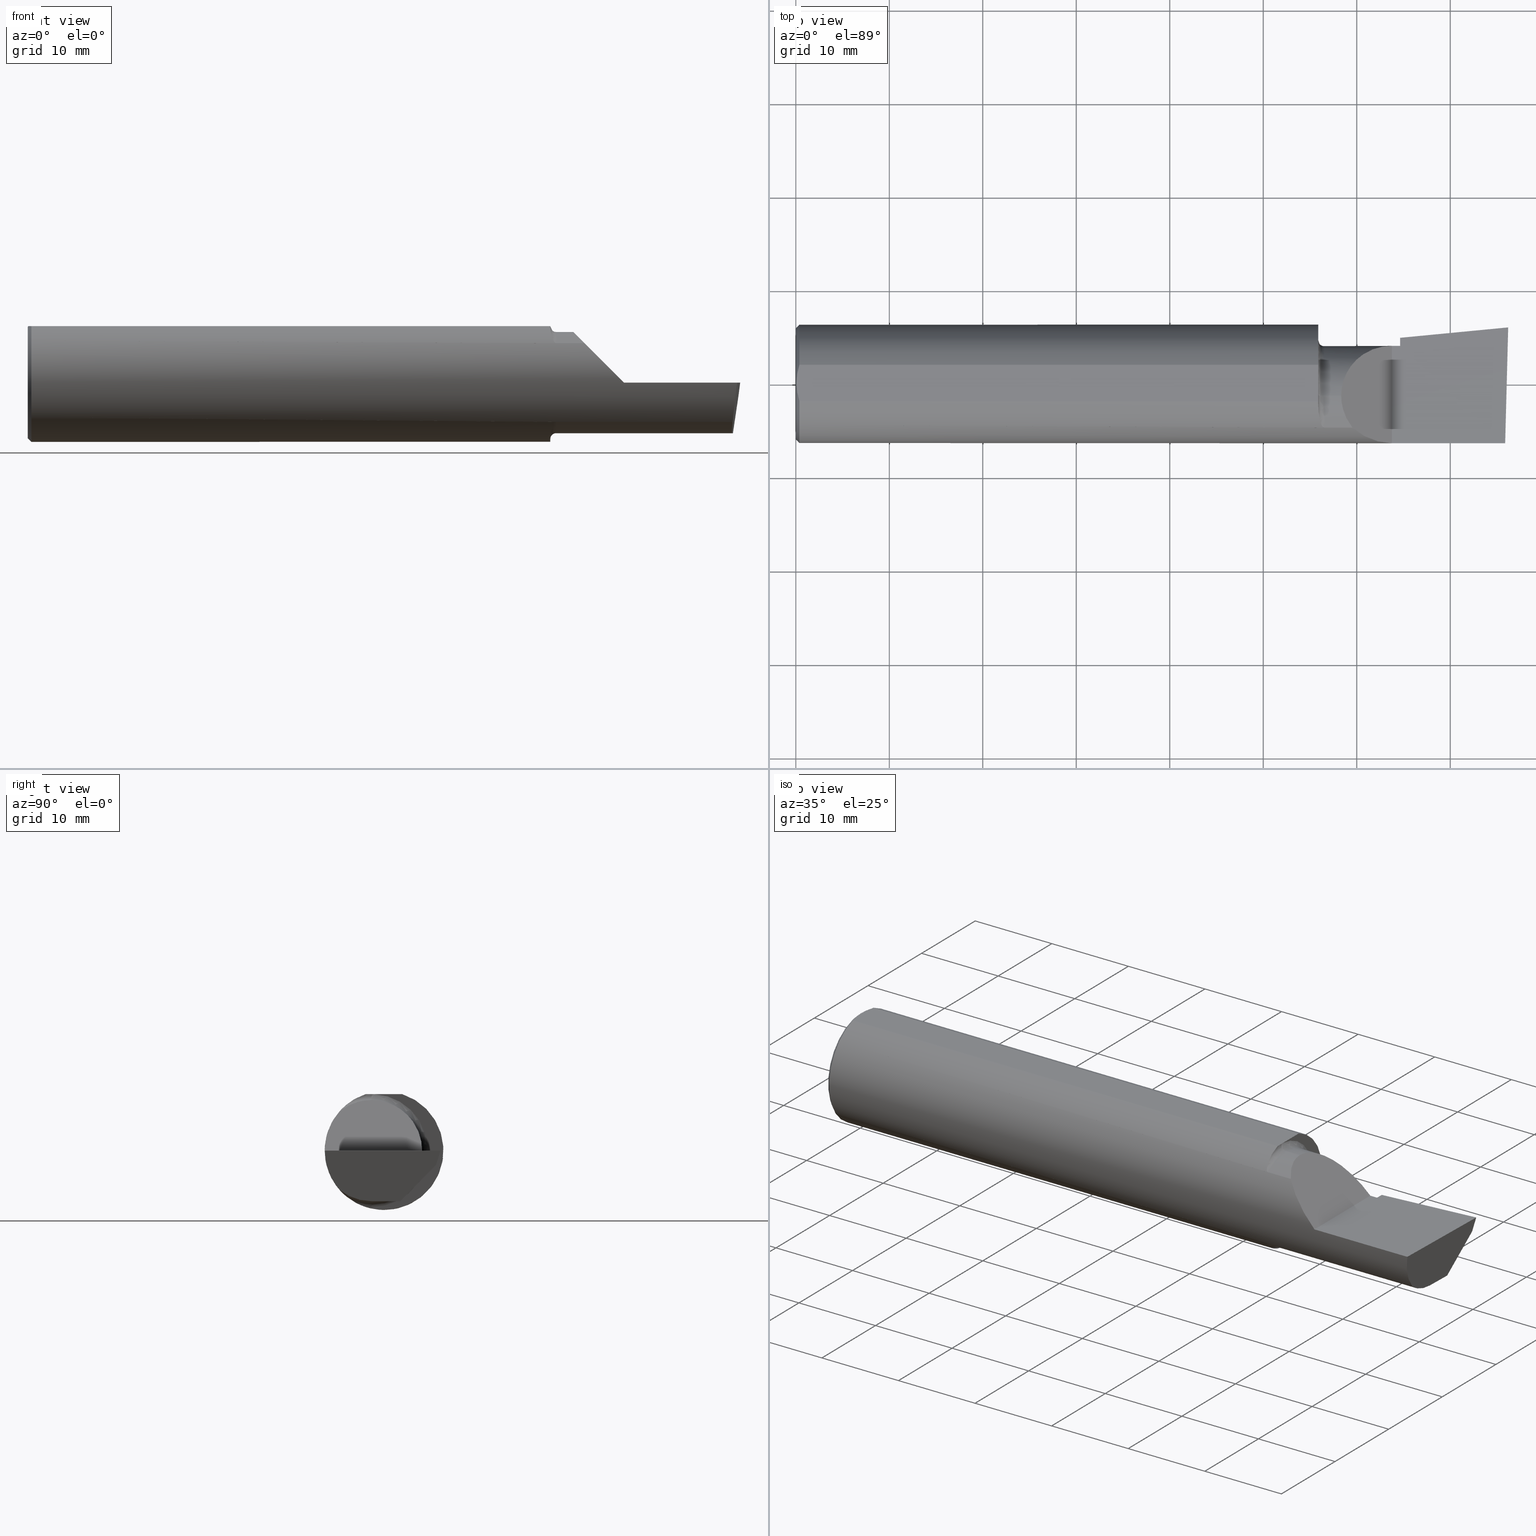
[diagram: canonical four-view strip — front | top / right | iso, engineering-drawing reading convention]
A machine part, canonical four-view strip (front | top / right | iso — engineering-drawing reading convention). The complete STEP part file that produces these views, byte-faithful:
ISO-10303-21;
HEADER;
FILE_DESCRIPTION (( 'STEP AP214' ),
    '1' );
FILE_NAME ('B490750.STEP',
    '2020-05-06T18:26:32',
    ( '' ),
    ( '' ),
    'SwSTEP 2.0',
    'SolidWorks 2018',
    '' );
FILE_SCHEMA (( 'AUTOMOTIVE_DESIGN' ));
ENDSEC;

DATA;
#1 = ORIENTED_EDGE ( 'NONE', *, *, #416, .F. ) ;
#2 = CARTESIAN_POINT ( 'NONE',  ( 2.225000000000000089, -0.05299999999999998462, 0.0000000000000000000 ) ) ;
#3 = AXIS2_PLACEMENT_3D ( 'NONE', #232, #644, #535 ) ;
#4 = CYLINDRICAL_SURFACE ( 'NONE', #383, 0.2131499999999999506 ) ;
#5 = LINE ( 'NONE', #685, #455 ) ;
#6 =( NAMED_UNIT ( * ) SI_UNIT ( $, .STERADIAN. ) SOLID_ANGLE_UNIT ( ) );
#7 = CARTESIAN_POINT ( 'NONE',  ( 2.200000000000000178, 0.07650098038587503646, 0.2378500000000000059 ) ) ;
#8 = LINE ( 'NONE', #450, #135 ) ;
#9 = FACE_OUTER_BOUND ( 'NONE', #262, .T. ) ;
#10 = EDGE_LOOP ( 'NONE', ( #711, #480, #113, #372 ) ) ;
#11 = CARTESIAN_POINT ( 'NONE',  ( 2.200000000000000178, -0.07650098038590467941, 0.2378500000000000059 ) ) ;
#12 = CARTESIAN_POINT ( 'NONE',  ( 2.207341173198634543, -0.1582250006961558320, -0.1936724403215128454 ) ) ;
#13 = DIRECTION ( 'NONE',  ( 0.9953961983671800740, 0.09584575252021031166, -0.0000000000000000000 ) ) ;
#14 = DIRECTION ( 'NONE',  ( 0.0000000000000000000, -0.6963153109074925462, -0.7177360153954948085 ) ) ;
#15 = PLANE ( 'NONE',  #65 ) ;
#16 = VERTEX_POINT ( 'NONE', #105 ) ;
#17 = EDGE_CURVE ( 'NONE', #426, #57, #627, .T. ) ;
#18 = CLOSED_SHELL ( 'NONE', ( #520, #413, #750, #138, #499, #165, #351, #587, #261, #696, #35, #103, #288, #441, #666, #467, #637, #729, #80, #198, #220, #327 ) ) ;
#19 = CARTESIAN_POINT ( 'NONE',  ( 2.220138573936400128, -0.1849738682364328035, -0.1679602226613253479 ) ) ;
#20 = CARTESIAN_POINT ( 'NONE',  ( 3.000000000000000444, -0.2500000000000000555, -6.829619984160658046E-17 ) ) ;
#21 = SURFACE_STYLE_USAGE ( .BOTH. , #397 ) ;
#22 = PRESENTATION_STYLE_ASSIGNMENT (( #21 ) ) ;
#23 = VECTOR ( 'NONE', #73, 39.37007874015748143 ) ;
#24 = FACE_OUTER_BOUND ( 'NONE', #512, .T. ) ;
#25 = CARTESIAN_POINT ( 'NONE',  ( 2.313215146136121447, -0.1485302233682029571, 0.1967848538638767297 ) ) ;
#26 = ORIENTED_EDGE ( 'NONE', *, *, #83, .T. ) ;
#27 = PRODUCT_DEFINITION_FORMATION_WITH_SPECIFIED_SOURCE ( 'ANY', '', #751, .NOT_KNOWN. ) ;
#28 = ORIENTED_EDGE ( 'NONE', *, *, #218, .T. ) ;
#29 = CARTESIAN_POINT ( 'NONE',  ( 2.545000000000000373, 0.05698775240724726632, -0.1825804393148457716 ) ) ;
#30 = EDGE_CURVE ( 'NONE', #426, #707, #176, .T. ) ;
#31 = DIRECTION ( 'NONE',  ( 0.0000000000000000000, -1.138839417068644240E-16, -1.000000000000000000 ) ) ;
#32 = AXIS2_PLACEMENT_3D ( 'NONE', #425, #54, #482 ) ;
#33 =( BOUNDED_CURVE ( )  B_SPLINE_CURVE ( 3, ( #299, #645, #233, #360 ),
 .UNSPECIFIED., .F., .T. ) 
 B_SPLINE_CURVE_WITH_KNOTS ( ( 4, 4 ),
 ( 3.399950576546885372, 3.405787439796294613 ),
 .UNSPECIFIED. ) 
 CURVE ( )  GEOMETRIC_REPRESENTATION_ITEM ( )  RATIONAL_B_SPLINE_CURVE ( ( 1.000000000000000000, 0.9999971609209656886, 0.9999971609209656886, 1.000000000000000000 ) ) 
 REPRESENTATION_ITEM ( '' )  );
#34 = DIRECTION ( 'NONE',  ( -1.000000000000000000, -0.0000000000000000000, -0.0000000000000000000 ) ) ;
#35 = ADVANCED_FACE ( 'NONE', ( #320 ), #417, .F. ) ;
#36 = CARTESIAN_POINT ( 'NONE',  ( 2.200000000000000178, 0.1851499999999999257, 0.0000000000000000000 ) ) ;
#37 = CARTESIAN_POINT ( 'NONE',  ( 2.207343635746627175, -0.1582230848692695868, 0.1936715022401950259 ) ) ;
#38 = DIRECTION ( 'NONE',  ( 0.7071067811865391350, 0.0000000000000000000, -0.7071067811865558994 ) ) ;
#39 = ORIENTED_EDGE ( 'NONE', *, *, #406, .F. ) ;
#40 = DIRECTION ( 'NONE',  ( 1.000000000000000000, 0.0000000000000000000, 0.0000000000000000000 ) ) ;
#41 = EDGE_CURVE ( 'NONE', #536, #362, #762, .T. ) ;
#42 = DIRECTION ( 'NONE',  ( -1.000000000000000000, -0.0000000000000000000, -0.0000000000000000000 ) ) ;
#43 = ORIENTED_EDGE ( 'NONE', *, *, #30, .F. ) ;
#44 = CARTESIAN_POINT ( 'NONE',  ( 2.532795049205045501, 0.1343794326159072905, -0.1015966078791039340 ) ) ;
#45 = VERTEX_POINT ( 'NONE', #534 ) ;
#46 = VECTOR ( 'NONE', #318, 39.37007874015748143 ) ;
#47 = VECTOR ( 'NONE', #90, 39.37007874015748143 ) ;
#48 = DIRECTION ( 'NONE',  ( 1.000000000000000000, 0.0000000000000000000, 0.0000000000000000000 ) ) ;
#49 = DIRECTION ( 'NONE',  ( 0.9953961983671800740, 0.09584575252021028391, -1.636475167022362239E-17 ) ) ;
#50 = AXIS2_PLACEMENT_3D ( 'NONE', #704, #755, #418 ) ;
#51 = CARTESIAN_POINT ( 'NONE',  ( 2.527186805775588851, 0.1926232675528999905, -6.829619984160658046E-17 ) ) ;
#52 = CARTESIAN_POINT ( 'NONE',  ( 2.225000000000000089, -0.1868028301886793530, -0.1659208399614086893 ) ) ;
#53 = ORIENTED_EDGE ( 'NONE', *, *, #364, .F. ) ;
#54 = DIRECTION ( 'NONE',  ( 1.000000000000000000, 0.0000000000000000000, 0.0000000000000000000 ) ) ;
#55 = ORIENTED_EDGE ( 'NONE', *, *, #717, .F. ) ;
#56 = PRODUCT_DEFINITION_CONTEXT ( 'detailed design', #131, 'design' ) ;
#57 = VERTEX_POINT ( 'NONE', #594 ) ;
#58 = ORIENTED_EDGE ( 'NONE', *, *, #115, .T. ) ;
#59 = DIRECTION ( 'NONE',  ( 0.0000000000000000000, 0.0000000000000000000, -1.000000000000000000 ) ) ;
#60 = CARTESIAN_POINT ( 'NONE',  ( 2.200000000000000178, -0.08036415094339657839, 0.2365726648265749632 ) ) ;
#61 = CARTESIAN_POINT ( 'NONE',  ( 2.200000000000000178, -0.04105010460296977526, 0.2378500000000000059 ) ) ;
#62 = LINE ( 'NONE', #132, #206 ) ;
#63 = CIRCLE ( 'NONE', #76, 0.2381499999999999173 ) ;
#64 = LENGTH_MEASURE_WITH_UNIT ( LENGTH_MEASURE( 0.02539999999999999897 ), #662 );
#65 = AXIS2_PLACEMENT_3D ( 'NONE', #504, #205, #390 ) ;
#66 = CARTESIAN_POINT ( 'NONE',  ( 2.963949576795525065, -0.1303119248116722251, -0.2149526021148594479 ) ) ;
#67 = ORIENTED_EDGE ( 'NONE', *, *, #766, .F. ) ;
#68 = APPLICATION_PROTOCOL_DEFINITION ( 'draft international standard', 'automotive_design', 1998, #128 ) ;
#69 = DIRECTION ( 'NONE',  ( 1.000000000000000000, 0.0000000000000000000, 0.0000000000000000000 ) ) ;
#70 = VERTEX_POINT ( 'NONE', #359 ) ;
#71 = VECTOR ( 'NONE', #190, 39.37007874015748143 ) ;
#72 = VERTEX_POINT ( 'NONE', #757 ) ;
#73 = DIRECTION ( 'NONE',  ( 1.000000000000000000, 0.0000000000000000000, 0.0000000000000000000 ) ) ;
#74 = EDGE_CURVE ( 'NONE', #628, #114, #247, .T. ) ;
#75 = ORIENTED_EDGE ( 'NONE', *, *, #449, .T. ) ;
#76 = AXIS2_PLACEMENT_3D ( 'NONE', #148, #576, #210 ) ;
#77 = ORIENTED_EDGE ( 'NONE', *, *, #649, .T. ) ;
#78 = CARTESIAN_POINT ( 'NONE',  ( 2.201227564404962589, -0.1217005943024293546, -0.2193523119135138422 ) ) ;
#79 = EDGE_LOOP ( 'NONE', ( #686, #651, #281, #369, #26, #481, #257, #145 ) ) ;
#80 = ADVANCED_FACE ( 'NONE', ( #700 ), #108, .F. ) ;
#81 = CARTESIAN_POINT ( 'NONE',  ( 0.01499999999999999771, 0.07650098038587500870, 0.2378499999999999226 ) ) ;
#82 = CARTESIAN_POINT ( 'NONE',  ( 2.215875558094659414, -0.1799506819598038487, -0.1733486322212181296 ) ) ;
#83 = EDGE_CURVE ( 'NONE', #561, #505, #33, .T. ) ;
#84 = LINE ( 'NONE', #661, #226 ) ;
#85 = VECTOR ( 'NONE', #230, 39.37007874015748143 ) ;
#86 = DIRECTION ( 'NONE',  ( 0.06894566448119621160, -0.7160281025913034503, 0.6946583704589934793 ) ) ;
#87 = ORIENTED_EDGE ( 'NONE', *, *, #241, .T. ) ;
#88 = AXIS2_PLACEMENT_3D ( 'NONE', #538, #173, #598 ) ;
#89 = CARTESIAN_POINT ( 'NONE',  ( 3.000000000000000888, -0.05299999999999998462, -0.2131499999999999229 ) ) ;
#90 = DIRECTION ( 'NONE',  ( 0.0000000000000000000, -1.000000000000000000, 1.138839417068644240E-16 ) ) ;
#91 = AXIS2_PLACEMENT_3D ( 'NONE', #557, #193, #609 ) ;
#92 = CARTESIAN_POINT ( 'NONE',  ( 2.200001800093990489, -0.05698398688203979573, 0.2378499975680403167 ) ) ;
#93 = FACE_OUTER_BOUND ( 'NONE', #273, .T. ) ;
#94 = VERTEX_POINT ( 'NONE', #540 ) ;
#95 = ORIENTED_EDGE ( 'NONE', *, *, #203, .F. ) ;
#96 = EDGE_LOOP ( 'NONE', ( #410, #100, #222, #638 ) ) ;
#97 = CARTESIAN_POINT ( 'NONE',  ( 2.225000000000000089, -0.1868028301886792142, 0.1659208399614088003 ) ) ;
#98 = B_SPLINE_CURVE_WITH_KNOTS ( 'NONE', 3,
 ( #162, #287, #691, #348, #749, #412, #37, #466, #102, #522, #164, #590, #223, #636, #290, #698 ),
 .UNSPECIFIED., .F., .F.,
 ( 4, 2, 2, 2, 2, 2, 2, 4 ),
 ( 0.0001034694911878116782, 0.0009591263138367388556, 0.001814783136485666019, 0.002670439959134593075, 0.003098268370459054868, 0.003312182576121287716, 0.003419139678952397635, 0.003526096781783507987 ),
 .UNSPECIFIED. ) ;
#99 = CARTESIAN_POINT ( 'NONE',  ( 0.01499999999999999771, 0.0000000000000000000, 0.0000000000000000000 ) ) ;
#100 = ORIENTED_EDGE ( 'NONE', *, *, #766, .T. ) ;
#101 = CARTESIAN_POINT ( 'NONE',  ( 2.510000000000000231, -0.2498499999999999610, 6.000769315822035917E-17 ) ) ;
#102 = CARTESIAN_POINT ( 'NONE',  ( 2.212758562425229947, -0.1743135686468865742, 0.1790760091940043208 ) ) ;
#103 = ADVANCED_FACE ( 'NONE', ( #227 ), #375, .T. ) ;
#104 = DIRECTION ( 'NONE',  ( 0.0000000000000000000, 1.000000000000000000, 0.0000000000000000000 ) ) ;
#105 = CARTESIAN_POINT ( 'NONE',  ( 0.01499999999998188026, -0.07650098038590467941, 0.2378500000000000059 ) ) ;
#106 = CARTESIAN_POINT ( 'NONE',  ( 2.536975816846327891, 0.1338694103809225100, -0.1025372660271278019 ) ) ;
#107 = AXIS2_PLACEMENT_3D ( 'NONE', #484, #119, #546 ) ;
#108 = PLANE ( 'NONE',  #668 ) ;
#109 = DIRECTION ( 'NONE',  ( -1.000000000000000000, -0.0000000000000000000, -0.0000000000000000000 ) ) ;
#110 = LINE ( 'NONE', #639, #578 ) ;
#111 = CARTESIAN_POINT ( 'NONE',  ( 2.991023571893946631, 0.2162715254282616684, -0.06841772571930096469 ) ) ;
#112 = ORIENTED_EDGE ( 'NONE', *, *, #324, .F. ) ;
#113 = ORIENTED_EDGE ( 'NONE', *, *, #249, .F. ) ;
#114 = VERTEX_POINT ( 'NONE', #301 ) ;
#115 = EDGE_CURVE ( 'NONE', #389, #705, #678, .T. ) ;
#116 = ORIENTED_EDGE ( 'NONE', *, *, #602, .T. ) ;
#117 = CIRCLE ( 'NONE', #107, 0.2131499999999999229 ) ;
#118 = AXIS2_PLACEMENT_3D ( 'NONE', #150, #336, #736 ) ;
#119 = DIRECTION ( 'NONE',  ( -1.000000000000000000, -0.0000000000000000000, -0.0000000000000000000 ) ) ;
#120 = LENGTH_MEASURE_WITH_UNIT ( LENGTH_MEASURE( 0.02539999999999999897 ), #313 );
#121 = CARTESIAN_POINT ( 'NONE',  ( 0.01120982745448973784, -0.06412238594540853320, 0.2378500000000000059 ) ) ;
#122 = EDGE_CURVE ( 'NONE', #370, #354, #415, .T. ) ;
#123 = CARTESIAN_POINT ( 'NONE',  ( 2.225000000000000089, -0.05299999999999998462, 0.0000000000000000000 ) ) ;
#124 = DIRECTION ( 'NONE',  ( -0.02617694830787789181, -0.9996573249755572599, 1.706819910991413033E-16 ) ) ;
#125 = CARTESIAN_POINT ( 'NONE',  ( 2.964907988924523341, -0.1021668565906570375, -0.2131499999999998396 ) ) ;
#126 = ORIENTED_EDGE ( 'NONE', *, *, #292, .T. ) ;
#127 = AXIS2_PLACEMENT_3D ( 'NONE', #201, #575, #209 ) ;
#128 = APPLICATION_CONTEXT ( 'automotive_design' ) ;
#129 = CIRCLE ( 'NONE', #127, 0.2498499999999999888 ) ;
#130 = FACE_OUTER_BOUND ( 'NONE', #278, .T. ) ;
#131 = APPLICATION_CONTEXT ( 'automotive_design' ) ;
#132 = CARTESIAN_POINT ( 'NONE',  ( 0.01499999999999999771, 3.059780027669661931E-17, 0.2498499999999999888 ) ) ;
#133 = AXIS2_PLACEMENT_3D ( 'NONE', #66, #720, #377 ) ;
#134 = ORIENTED_EDGE ( 'NONE', *, *, #179, .T. ) ;
#135 = VECTOR ( 'NONE', #571, 39.37007874015748143 ) ;
#136 = VERTEX_POINT ( 'NONE', #625 ) ;
#137 = EDGE_CURVE ( 'NONE', #452, #244, #160, .T. ) ;
#138 = ADVANCED_FACE ( 'NONE', ( #550 ), #207, .F. ) ;
#139 = CARTESIAN_POINT ( 'NONE',  ( 0.0000000000000000000, -0.07650098038587496707, 0.2378499999999999226 ) ) ;
#140 = CARTESIAN_POINT ( 'NONE',  ( 2.222232603162240139, -0.1862758070845873526, -0.1665151405181427013 ) ) ;
#141 = CARTESIAN_POINT ( 'NONE',  ( 2.212797058507744996, -0.1743943839926586914, -0.1789958554125698764 ) ) ;
#142 = DIMENSIONAL_EXPONENTS ( 1.000000000000000000, 0.0000000000000000000, 0.0000000000000000000, 0.0000000000000000000, 0.0000000000000000000, 0.0000000000000000000, 0.0000000000000000000 ) ;
#143 = AXIS2_PLACEMENT_3D ( 'NONE', #20, #679, #268 ) ;
#144 = CARTESIAN_POINT ( 'NONE',  ( 0.01499999999999999771, 0.07650098038587500870, 0.2378499999999999226 ) ) ;
#145 = ORIENTED_EDGE ( 'NONE', *, *, #586, .T. ) ;
#146 = LINE ( 'NONE', #414, #169 ) ;
#147 = VECTOR ( 'NONE', #551, 39.37007874015748143 ) ;
#148 = CARTESIAN_POINT ( 'NONE',  ( 2.200000000000000178, -0.05299999999999998462, 0.0000000000000000000 ) ) ;
#149 = CARTESIAN_POINT ( 'NONE',  ( 2.344079160038586185, -0.1868028301886760500, 0.1659208399614119644 ) ) ;
#150 = CARTESIAN_POINT ( 'NONE',  ( 2.225000000000000089, -0.05299999999999998462, 0.0000000000000000000 ) ) ;
#151 = CARTESIAN_POINT ( 'NONE',  ( 2.200000900032402118, -0.05299999999999998462, 0.2378500000000221548 ) ) ;
#152 = LINE ( 'NONE', #139, #303 ) ;
#153 = VECTOR ( 'NONE', #703, 39.37007874015748143 ) ;
#154 = EDGE_CURVE ( 'NONE', #136, #536, #63, .T. ) ;
#155 = ORIENTED_EDGE ( 'NONE', *, *, #442, .F. ) ;
#156 = ORIENTED_EDGE ( 'NONE', *, *, #74, .F. ) ;
#157 = EDGE_CURVE ( 'NONE', #302, #426, #531, .T. ) ;
#158 = CARTESIAN_POINT ( 'NONE',  ( 0.0000000000000000000, 2.967931517733664261E-17, 0.2348499999999996424 ) ) ;
#159 = CARTESIAN_POINT ( 'NONE',  ( 2.200000000000000178, -0.04105010460296977526, 0.2378500000000000059 ) ) ;
#160 = B_SPLINE_CURVE_WITH_KNOTS ( 'NONE', 3,
 ( #235, #276, #213, #271, #574, #144 ),
 .UNSPECIFIED., .F., .F.,
 ( 4, 2, 4 ),
 ( 0.004653101494310745746, 0.005634627094920352519, 0.006616152695529959292 ),
 .UNSPECIFIED. ) ;
#161 = DIRECTION ( 'NONE',  ( 0.0000000000000000000, 0.0000000000000000000, 1.000000000000000000 ) ) ;
#162 = CARTESIAN_POINT ( 'NONE',  ( 2.200000000000000178, -0.08036415094339657839, 0.2365726648265749632 ) ) ;
#163 = DIRECTION ( 'NONE',  ( -1.000000000000000000, -0.0000000000000000000, -0.0000000000000000000 ) ) ;
#164 = CARTESIAN_POINT ( 'NONE',  ( 2.217018584423771976, -0.1817363555988614210, 0.1714722504633805766 ) ) ;
#165 = ADVANCED_FACE ( 'NONE', ( #9 ), #623, .T. ) ;
#166 = CARTESIAN_POINT ( 'NONE',  ( 2.225000000000000089, -0.05299999999999998462, 0.0000000000000000000 ) ) ;
#167 = EDGE_CURVE ( 'NONE', #362, #311, #489, .T. ) ;
#168 = CARTESIAN_POINT ( 'NONE',  ( 2.541044210672214643, 0.1333523194825135816, -0.1034740570574035207 ) ) ;
#169 = VECTOR ( 'NONE', #38, 39.37007874015748143 ) ;
#170 = CONICAL_SURFACE ( 'NONE', #3, 0.2498499999999999888, 0.7853981633974601584 ) ;
#171 = DIRECTION ( 'NONE',  ( 0.06658005426110608083, -0.6914603011188221737, -0.7193398003386548556 ) ) ;
#172 = DIRECTION ( 'NONE',  ( 0.09165774897393343112, -0.9519021185660614393, 0.2923717047227302746 ) ) ;
#173 = DIRECTION ( 'NONE',  ( -1.000000000000000000, -0.0000000000000000000, -0.0000000000000000000 ) ) ;
#174 = DIRECTION ( 'NONE',  ( 0.0000000000000000000, 0.0000000000000000000, -1.000000000000000000 ) ) ;
#175 = FACE_OUTER_BOUND ( 'NONE', #79, .T. ) ;
#176 = LINE ( 'NONE', #228, #153 ) ;
#177 = AXIS2_PLACEMENT_3D ( 'NONE', #99, #516, #161 ) ;
#178 = EDGE_LOOP ( 'NONE', ( #55, #605, #275, #497, #156, #566, #525, #87, #39, #398, #688, #460, #95 ) ) ;
#179 = EDGE_CURVE ( 'NONE', #523, #411, #355, .T. ) ;
#180 = MANIFOLD_SOLID_BREP ( '73E459CB-29B3-4331-A287-02C994C6965D-GAAFaceID11', #18 ) ;
#181 = CARTESIAN_POINT ( 'NONE',  ( 2.510000000000000231, -0.2498499999999999610, 6.000769315822035917E-17 ) ) ;
#182 = EDGE_LOOP ( 'NONE', ( #211, #67, #585, #714, #562, #728 ) ) ;
#183 = VERTEX_POINT ( 'NONE', #400 ) ;
#184 = DIRECTION ( 'NONE',  ( 0.0000000000000000000, 0.0000000000000000000, 1.000000000000000000 ) ) ;
#185 = DIRECTION ( 'NONE',  ( 0.0000000000000000000, 0.0000000000000000000, 1.000000000000000000 ) ) ;
#186 = TOROIDAL_SURFACE ( 'NONE', #312, 0.2381499999999999173, 0.02499999999999993894 ) ;
#187 = AXIS2_PLACEMENT_3D ( 'NONE', #245, #650, #307 ) ;
#188 = CIRCLE ( 'NONE', #177, 0.2498499999999999888 ) ;
#189 = FACE_OUTER_BOUND ( 'NONE', #361, .T. ) ;
#190 = DIRECTION ( 'NONE',  ( -0.0000000000000000000, 1.000000000000000000, -0.0000000000000000000 ) ) ;
#191 = SHAPE_DEFINITION_REPRESENTATION ( #612, #544 ) ;
#192 = FILL_AREA_STYLE ('',( #556 ) ) ;
#193 = DIRECTION ( 'NONE',  ( -1.000000000000000000, -0.0000000000000000000, -0.0000000000000000000 ) ) ;
#194 = EDGE_LOOP ( 'NONE', ( #255, #294, #112, #340, #764 ) ) ;
#195 = ORIENTED_EDGE ( 'NONE', *, *, #442, .T. ) ;
#196 = CARTESIAN_POINT ( 'NONE',  ( 2.983714411583737736, 0.1632262006094381268, -0.1166167083458163334 ) ) ;
#197 = EDGE_CURVE ( 'NONE', #70, #439, #626, .T. ) ;
#198 = ADVANCED_FACE ( 'NONE', ( #175 ), #501, .F. ) ;
#199 = EDGE_CURVE ( 'NONE', #664, #70, #730, .T. ) ;
#200 = AXIS2_PLACEMENT_3D ( 'NONE', #269, #680, #333 ) ;
#201 = CARTESIAN_POINT ( 'NONE',  ( 0.01499999999999999771, 0.0000000000000000000, 0.0000000000000000000 ) ) ;
#202 = ORIENTED_EDGE ( 'NONE', *, *, #263, .F. ) ;
#203 = EDGE_CURVE ( 'NONE', #502, #536, #695, .T. ) ;
#204 = ORIENTED_EDGE ( 'NONE', *, *, #203, .T. ) ;
#205 = DIRECTION ( 'NONE',  ( 0.9953961983671800740, 0.09584575252021049208, -3.363855710005192617E-14 ) ) ;
#206 = VECTOR ( 'NONE', #611, 39.37007874015748143 ) ;
#207 = TOROIDAL_SURFACE ( 'NONE', #118, 0.2381499999999999173, 0.02499999999999993894 ) ;
#208 = CARTESIAN_POINT ( 'NONE',  ( 2.199999999999990408, -0.1016924291521889567, -0.2293274111511741375 ) ) ;
#209 = DIRECTION ( 'NONE',  ( 0.0000000000000000000, 0.0000000000000000000, 1.000000000000000000 ) ) ;
#210 = DIRECTION ( 'NONE',  ( 0.0000000000000000000, 0.0000000000000000000, 1.000000000000000000 ) ) ;
#211 = ORIENTED_EDGE ( 'NONE', *, *, #324, .T. ) ;
#212 = CARTESIAN_POINT ( 'NONE',  ( 2.296849999999997838, -0.1021668565906553305, 0.2131500000000000061 ) ) ;
#213 = CARTESIAN_POINT ( 'NONE',  ( 0.004092330037930667214, 0.02606142970188504368, 0.2378500000000000059 ) ) ;
#214 = AXIS2_PLACEMENT_3D ( 'NONE', #689, #344, #745 ) ;
#215 = CARTESIAN_POINT ( 'NONE',  ( 2.200000000000000178, -0.06096394231309280876, 0.2378500000000000059 ) ) ;
#216 = ORIENTED_EDGE ( 'NONE', *, *, #692, .F. ) ;
#217 = CARTESIAN_POINT ( 'NONE',  ( 2.200001800035618071, -0.04901601311796455890, 0.2378500024320483464 ) ) ;
#218 = EDGE_CURVE ( 'NONE', #548, #505, #238, .T. ) ;
#219 = CARTESIAN_POINT ( 'NONE',  ( 2.968492717492762889, -0.1868028301886794917, -0.1659208399614086338 ) ) ;
#220 = ADVANCED_FACE ( 'NONE', ( #459 ), #15, .T. ) ;
#221 = ORIENTED_EDGE ( 'NONE', *, *, #615, .T. ) ;
#222 = ORIENTED_EDGE ( 'NONE', *, *, #157, .T. ) ;
#223 = CARTESIAN_POINT ( 'NONE',  ( 2.220144309637440472, -0.1849788583324331048, 0.1679547276881069029 ) ) ;
#224 = DIRECTION ( 'NONE',  ( 0.0000000000000000000, 0.0000000000000000000, 1.000000000000000000 ) ) ;
#225 = CARTESIAN_POINT ( 'NONE',  ( 2.510000000000000231, -0.2500000000000000555, 6.000769315822035917E-17 ) ) ;
#226 = VECTOR ( 'NONE', #493, 39.37007874015748143 ) ;
#227 = FACE_OUTER_BOUND ( 'NONE', #670, .T. ) ;
#228 = CARTESIAN_POINT ( 'NONE',  ( 2.545000000000000373, -0.05299999999999998462, -0.2131499999999999229 ) ) ;
#229 = AXIS2_PLACEMENT_3D ( 'NONE', #765, #430, #59 ) ;
#230 = DIRECTION ( 'NONE',  ( 1.000000000000000000, 0.0000000000000000000, 0.0000000000000000000 ) ) ;
#231 = ORIENTED_EDGE ( 'NONE', *, *, #41, .T. ) ;
#232 = CARTESIAN_POINT ( 'NONE',  ( 0.01499999999999999771, 0.0000000000000000000, 0.0000000000000000000 ) ) ;
#233 = CARTESIAN_POINT ( 'NONE',  ( 2.541916792879879150, 0.05627666367902767197, -0.1830073912696825178 ) ) ;
#234 = CARTESIAN_POINT ( 'NONE',  ( 2.540349815208490014, 0.05592018782259777776, -0.1832193089843150990 ) ) ;
#235 = CARTESIAN_POINT ( 'NONE',  ( 0.003000000000000035624, 4.000211044293764417E-17, 0.2378500000000000059 ) ) ;
#236 = LINE ( 'NONE', #553, #71 ) ;
#237 = VERTEX_POINT ( 'NONE', #267 ) ;
#238 =( BOUNDED_CURVE ( )  B_SPLINE_CURVE ( 3, ( #741, #393, #447, #618 ),
 .UNSPECIFIED., .F., .T. ) 
 B_SPLINE_CURVE_WITH_KNOTS ( ( 4, 4 ),
 ( 0.4968328636548186572, 1.034445644973940093 ),
 .UNSPECIFIED. ) 
 CURVE ( )  GEOMETRIC_REPRESENTATION_ITEM ( )  RATIONAL_B_SPLINE_CURVE ( ( 1.000000000000000000, 0.9760590552538845888, 0.9760590552538845888, 1.000000000000000000 ) ) 
 REPRESENTATION_ITEM ( '' )  );
#239 = EDGE_CURVE ( 'NONE', #70, #370, #8, .T. ) ;
#240 = ORIENTED_EDGE ( 'NONE', *, *, #416, .T. ) ;
#241 = EDGE_CURVE ( 'NONE', #389, #16, #152, .T. ) ;
#242 = AXIS2_PLACEMENT_3D ( 'NONE', #513, #684, #339 ) ;
#243 = ORIENTED_EDGE ( 'NONE', *, *, #280, .T. ) ;
#244 = VERTEX_POINT ( 'NONE', #81 ) ;
#245 = CARTESIAN_POINT ( 'NONE',  ( 2.545000000000000373, -0.05299999999999998462, 0.0000000000000000000 ) ) ;
#246 = CARTESIAN_POINT ( 'NONE',  ( 0.008160184410935168720, -0.05138200716576601240, 0.2378500000000000614 ) ) ;
#247 = LINE ( 'NONE', #754, #85 ) ;
#248 = PRESENTATION_STYLE_ASSIGNMENT (( #253 ) ) ;
#249 = EDGE_CURVE ( 'NONE', #391, #354, #744, .T. ) ;
#250 = CARTESIAN_POINT ( 'NONE',  ( 3.000000000000000888, -0.05299999999999998462, -0.2131499999999999229 ) ) ;
#251 = CARTESIAN_POINT ( 'NONE',  ( 2.965703997523711166, -0.1485302233682059825, -0.1967848538638755918 ) ) ;
#252 = AXIS2_PLACEMENT_3D ( 'NONE', #300, #109, #621 ) ;
#253 = SURFACE_STYLE_USAGE ( .BOTH. , #608 ) ;
#254 = DIRECTION ( 'NONE',  ( -1.000000000000000000, -0.0000000000000000000, -0.0000000000000000000 ) ) ;
#255 = ORIENTED_EDGE ( 'NONE', *, *, #17, .F. ) ;
#256 = LINE ( 'NONE', #702, #147 ) ;
#257 = ORIENTED_EDGE ( 'NONE', *, *, #465, .T. ) ;
#258 = DIRECTION ( 'NONE',  ( -0.7071067811865436870, 0.0000000000000000000, -0.7071067811865514585 ) ) ;
#259 = AXIS2_PLACEMENT_3D ( 'NONE', #432, #254, #663 ) ;
#260 = ORIENTED_EDGE ( 'NONE', *, *, #330, .T. ) ;
#261 = ADVANCED_FACE ( 'NONE', ( #282 ), #332, .F. ) ;
#262 = EDGE_LOOP ( 'NONE', ( #580, #43, #385 ) ) ;
#263 = EDGE_CURVE ( 'NONE', #183, #57, #117, .T. ) ;
#264 =( BOUNDED_CURVE ( )  B_SPLINE_CURVE ( 3, ( #44, #106, #168, #593 ),
 .UNSPECIFIED., .F., .T. ) 
 B_SPLINE_CURVE_WITH_KNOTS ( ( 4, 4 ),
 ( 2.868174658477174344, 2.883234730632703080 ),
 .UNSPECIFIED. ) 
 CURVE ( )  GEOMETRIC_REPRESENTATION_ITEM ( )  RATIONAL_B_SPLINE_CURVE ( ( 1.000000000000000000, 0.9999810996081960335, 0.9999810996081960335, 1.000000000000000000 ) ) 
 REPRESENTATION_ITEM ( '' )  );
#265 = EDGE_LOOP ( 'NONE', ( #542, #669, #116, #435, #646 ) ) ;
#266 = CARTESIAN_POINT ( 'NONE',  ( 2.987221270274242446, -0.2498499999999999888, -6.495015745097940340E-17 ) ) ;
#267 = CARTESIAN_POINT ( 'NONE',  ( 2.296849999999997838, -0.05299999999999998462, 0.2131499999999999506 ) ) ;
#268 = DIRECTION ( 'NONE',  ( -1.000000000000000000, 0.0000000000000000000, 2.618446795914836237E-16 ) ) ;
#269 = CARTESIAN_POINT ( 'NONE',  ( 0.0000000000000000000, 0.0000000000000000000, 0.0000000000000000000 ) ) ;
#270 = AXIS2_PLACEMENT_3D ( 'NONE', #123, #552, #185 ) ;
#271 = CARTESIAN_POINT ( 'NONE',  ( 0.008199648822849016708, 0.05156445313451110679, 0.2378500000000000059 ) ) ;
#272 = CARTESIAN_POINT ( 'NONE',  ( 2.545000000000000373, 0.2148312740513257935, -0.01988118725737613585 ) ) ;
#273 = EDGE_LOOP ( 'NONE', ( #563, #321, #726, #204 ) ) ;
#274 = CYLINDRICAL_SURFACE ( 'NONE', #495, 0.2131499999999999506 ) ;
#275 = ORIENTED_EDGE ( 'NONE', *, *, #197, .T. ) ;
#276 = CARTESIAN_POINT ( 'NONE',  ( 0.003000000000000063380, 0.01299872814765626154, 0.2378499999999999226 ) ) ;
#277 = ORIENTED_EDGE ( 'NONE', *, *, #167, .F. ) ;
#278 = EDGE_LOOP ( 'NONE', ( #277, #647, #518, #595, #423, #1, #305, #693 ) ) ;
#279 = DIRECTION ( 'NONE',  ( 0.0000000000000000000, 0.6963153109074925462, 0.7177360153954948085 ) ) ;
#280 = EDGE_CURVE ( 'NONE', #561, #426, #601, .T. ) ;
#281 = ORIENTED_EDGE ( 'NONE', *, *, #483, .F. ) ;
#282 = FACE_OUTER_BOUND ( 'NONE', #472, .T. ) ;
#283 = EDGE_CURVE ( 'NONE', #94, #183, #761, .T. ) ;
#284 = DIRECTION ( 'NONE',  ( -1.000000000000000000, -0.0000000000000000000, -0.0000000000000000000 ) ) ;
#285 = DIRECTION ( 'NONE',  ( 0.0000000000000000000, 0.0000000000000000000, 1.000000000000000000 ) ) ;
#286 = STYLED_ITEM ( 'NONE', ( #22 ), #180 ) ;
#287 = CARTESIAN_POINT ( 'NONE',  ( 2.199999999999999734, -0.09104204635388178646, 0.2329453649474654831 ) ) ;
#288 = ADVANCED_FACE ( 'NONE', ( #731 ), #186, .F. ) ;
#289 = DIRECTION ( 'NONE',  ( 0.0000000000000000000, 0.0000000000000000000, -1.000000000000000000 ) ) ;
#290 = CARTESIAN_POINT ( 'NONE',  ( 2.223548866468135543, -0.1868028301907316557, 0.1659208399590982042 ) ) ;
#291 = CARTESIAN_POINT ( 'NONE',  ( 2.385139620819824113, 0.1601499999999999591, 0.1248603791801747992 ) ) ;
#292 = EDGE_CURVE ( 'NONE', #16, #452, #588, .T. ) ;
#293 = DIRECTION ( 'NONE',  ( 1.000000000000000000, 0.0000000000000000000, 0.0000000000000000000 ) ) ;
#294 = ORIENTED_EDGE ( 'NONE', *, *, #157, .F. ) ;
#295 = AXIS2_PLACEMENT_3D ( 'NONE', #225, #258, #767 ) ;
#296 = CARTESIAN_POINT ( 'NONE',  ( 2.545000000000000373, 0.1943384830701264387, 7.172376428538449649E-16 ) ) ;
#297 = VECTOR ( 'NONE', #49, 39.37007874015748854 ) ;
#298 = FACE_OUTER_BOUND ( 'NONE', #674, .T. ) ;
#299 = CARTESIAN_POINT ( 'NONE',  ( 2.545000000000000373, 0.05698775240724726632, -0.1825804393148457716 ) ) ;
#300 = CARTESIAN_POINT ( 'NONE',  ( 0.0000000000000000000, -0.05299999999999998462, 0.0000000000000000000 ) ) ;
#301 = CARTESIAN_POINT ( 'NONE',  ( 2.344079160038586185, -0.1868028301886760500, 0.1659208399614119644 ) ) ;
#302 = VERTEX_POINT ( 'NONE', #768 ) ;
#303 = VECTOR ( 'NONE', #673, 39.37007874015748143 ) ;
#304 = ORIENTED_EDGE ( 'NONE', *, *, #428, .T. ) ;
#305 = ORIENTED_EDGE ( 'NONE', *, *, #573, .F. ) ;
#306 = EDGE_CURVE ( 'NONE', #628, #183, #715, .T. ) ;
#307 = DIRECTION ( 'NONE',  ( 0.0000000000000000000, 0.0000000000000000000, 1.000000000000000000 ) ) ;
#308 = CARTESIAN_POINT ( 'NONE',  ( 0.003000000000000061211, -0.01298133447204027208, 0.2378500000000000614 ) ) ;
#309 = DIRECTION ( 'NONE',  ( 0.0000000000000000000, -1.000000000000000000, 1.707404996040164512E-16 ) ) ;
#310 = CARTESIAN_POINT ( 'NONE',  ( 2.344079160038586185, -0.1868028301886760500, 0.1659208399614119644 ) ) ;
#311 = VERTEX_POINT ( 'NONE', #61 ) ;
#312 = AXIS2_PLACEMENT_3D ( 'NONE', #712, #366, #486 ) ;
#313 =( LENGTH_UNIT ( ) NAMED_UNIT ( * ) SI_UNIT ( $, .METRE. ) );
#314 = PLANE ( 'NONE',  #133 ) ;
#315 = CIRCLE ( 'NONE', #431, 0.2131499999999999229 ) ;
#316 = LINE ( 'NONE', #457, #758 ) ;
#317 =( CONVERSION_BASED_UNIT ( 'INCH', #64 ) LENGTH_UNIT ( ) NAMED_UNIT ( #142 ) );
#318 = DIRECTION ( 'NONE',  ( 0.9953961983671787417, 0.09584575252022460579, -2.606391986280347847E-16 ) ) ;
#319 = CARTESIAN_POINT ( 'NONE',  ( 1.878049121262586821E-31, 0.1601499999999999313, 7.172378389328440442E-16 ) ) ;
#320 = FACE_OUTER_BOUND ( 'NONE', #352, .T. ) ;
#321 = ORIENTED_EDGE ( 'NONE', *, *, #405, .T. ) ;
#322 = ORIENTED_EDGE ( 'NONE', *, *, #615, .F. ) ;
#323 = EDGE_CURVE ( 'NONE', #439, #114, #648, .T. ) ;
#324 = EDGE_CURVE ( 'NONE', #664, #302, #616, .T. ) ;
#325 = DIMENSIONAL_EXPONENTS ( 1.000000000000000000, 0.0000000000000000000, 0.0000000000000000000, 0.0000000000000000000, 0.0000000000000000000, 0.0000000000000000000, 0.0000000000000000000 ) ;
#326 = PRESENTATION_LAYER_ASSIGNMENT (  '', '', ( #286 ) ) ;
#327 = ADVANCED_FACE ( 'NONE', ( #699 ), #314, .F. ) ;
#328 =( NAMED_UNIT ( * ) PLANE_ANGLE_UNIT ( ) SI_UNIT ( $, .RADIAN. ) );
#329 = ORIENTED_EDGE ( 'NONE', *, *, #500, .T. ) ;
#330 = EDGE_CURVE ( 'NONE', #528, #72, #549, .T. ) ;
#331 = ORIENTED_EDGE ( 'NONE', *, *, #573, .T. ) ;
#332 = PLANE ( 'NONE',  #143 ) ;
#333 = DIRECTION ( 'NONE',  ( 0.0000000000000000000, 0.0000000000000000000, 1.000000000000000000 ) ) ;
#334 = VECTOR ( 'NONE', #748, 39.37007874015748143 ) ;
#335 = CIRCLE ( 'NONE', #88, 0.2381499999999999173 ) ;
#336 = DIRECTION ( 'NONE',  ( -1.000000000000000000, -0.0000000000000000000, -0.0000000000000000000 ) ) ;
#337 =( GEOMETRIC_REPRESENTATION_CONTEXT ( 3 ) GLOBAL_UNCERTAINTY_ASSIGNED_CONTEXT ( ( #349 ) ) GLOBAL_UNIT_ASSIGNED_CONTEXT ( ( #719, #376, #6 ) ) REPRESENTATION_CONTEXT ( 'NONE', 'WORKASPACE' ) );
#338 = AXIS2_PLACEMENT_3D ( 'NONE', #408, #34, #464 ) ;
#339 = DIRECTION ( 'NONE',  ( -0.0000000000000000000, 0.0000000000000000000, 1.000000000000000000 ) ) ;
#340 = ORIENTED_EDGE ( 'NONE', *, *, #717, .T. ) ;
#341 = ORIENTED_EDGE ( 'NONE', *, *, #753, .F. ) ;
#342 = AXIS2_PLACEMENT_3D ( 'NONE', #521, #163, #589 ) ;
#343 = PLANE ( 'NONE',  #379 ) ;
#344 = DIRECTION ( 'NONE',  ( -0.0000000000000000000, 1.000000000000000000, 1.224646799147353207E-16 ) ) ;
#345 = CARTESIAN_POINT ( 'NONE',  ( 2.200000000000000178, -0.06494989539703015236, 0.2378500000000000059 ) ) ;
#346 = EDGE_CURVE ( 'NONE', #237, #183, #84, .T. ) ;
#347 = CARTESIAN_POINT ( 'NONE',  ( 2.200000000000000178, 0.2998500000000000609, 0.2378499999999999504 ) ) ;
#348 = CARTESIAN_POINT ( 'NONE',  ( 2.201680550596498698, -0.1214972057705729497, 0.2186080375779522744 ) ) ;
#349 = UNCERTAINTY_MEASURE_WITH_UNIT (LENGTH_MEASURE( 1.000000000000000082E-05 ), #719, 'distance_accuracy_value', 'NONE');
#350 = PLANE ( 'NONE',  #50 ) ;
#351 = ADVANCED_FACE ( 'NONE', ( #677 ), #374, .T. ) ;
#352 = EDGE_LOOP ( 'NONE', ( #134, #221 ) ) ;
#353 = PLANE ( 'NONE',  #295 ) ;
#354 = VERTEX_POINT ( 'NONE', #381 ) ;
#355 = CIRCLE ( 'NONE', #200, 0.2348499999999996424 ) ;
#356 = VECTOR ( 'NONE', #727, 39.37007874015748854 ) ;
#357 = COLOUR_RGB ( '',0.7529411764705882248, 0.7529411764705882248, 0.7529411764705882248 ) ;
#358 = VECTOR ( 'NONE', #171, 39.37007874015748854 ) ;
#359 = CARTESIAN_POINT ( 'NONE',  ( 2.987221270274242446, -0.2498499999999999888, -6.495015745097940340E-17 ) ) ;
#360 = CARTESIAN_POINT ( 'NONE',  ( 2.540349815208490014, 0.05592018782259777776, -0.1832193089843150990 ) ) ;
#361 = EDGE_LOOP ( 'NONE', ( #322, #713, #672, #404, #155 ) ) ;
#362 = VERTEX_POINT ( 'NONE', #7 ) ;
#363 = EDGE_CURVE ( 'NONE', #498, #370, #530, .T. ) ;
#364 = EDGE_CURVE ( 'NONE', #411, #452, #62, .T. ) ;
#365 = MECHANICAL_DESIGN_GEOMETRIC_PRESENTATION_REPRESENTATION (  '', ( #286 ), #409 ) ;
#366 = DIRECTION ( 'NONE',  ( -1.000000000000000000, -0.0000000000000000000, -0.0000000000000000000 ) ) ;
#367 = ORIENTED_EDGE ( 'NONE', *, *, #83, .F. ) ;
#368 = CARTESIAN_POINT ( 'NONE',  ( 0.01499999999998188026, -0.07650098038590467941, 0.2378500000000000059 ) ) ;
#369 = ORIENTED_EDGE ( 'NONE', *, *, #533, .T. ) ;
#370 = VERTEX_POINT ( 'NONE', #665 ) ;
#371 = CARTESIAN_POINT ( 'NONE',  ( 2.448145753305722927, -0.2498500000000000165, 0.06185424669427665861 ) ) ;
#372 = ORIENTED_EDGE ( 'NONE', *, *, #692, .T. ) ;
#373 = EDGE_CURVE ( 'NONE', #354, #503, #507, .T. ) ;
#374 = CYLINDRICAL_SURFACE ( 'NONE', #259, 0.2498499999999999888 ) ;
#375 = CONICAL_SURFACE ( 'NONE', #632, 0.2498499999999999888, 0.7853981633974601584 ) ;
#376 =( NAMED_UNIT ( * ) PLANE_ANGLE_UNIT ( ) SI_UNIT ( $, .RADIAN. ) );
#377 = DIRECTION ( 'NONE',  ( 0.1219104985253027240, 0.0000000000000000000, 0.9925410975618652598 ) ) ;
#378 = AXIS2_PLACEMENT_3D ( 'NONE', #250, #656, #309 ) ;
#379 = AXIS2_PLACEMENT_3D ( 'NONE', #742, #31, #461 ) ;
#380 =( NAMED_UNIT ( * ) SI_UNIT ( $, .STERADIAN. ) SOLID_ANGLE_UNIT ( ) );
#381 = CARTESIAN_POINT ( 'NONE',  ( 2.992127980275568255, 0.2189633278254531357, -0.05999999999999998390 ) ) ;
#382 = UNCERTAINTY_MEASURE_WITH_UNIT (LENGTH_MEASURE( 1.000000000000000082E-05 ), #388, 'distance_accuracy_value', 'NONE');
#383 = AXIS2_PLACEMENT_3D ( 'NONE', #407, #284, #463 ) ;
#384 = SURFACE_STYLE_FILL_AREA ( #192 ) ;
#385 = ORIENTED_EDGE ( 'NONE', *, *, #280, .F. ) ;
#386 = VERTEX_POINT ( 'NONE', #559 ) ;
#387 = EDGE_CURVE ( 'NONE', #45, #528, #658, .T. ) ;
#388 =( CONVERSION_BASED_UNIT ( 'INCH', #620 ) LENGTH_UNIT ( ) NAMED_UNIT ( #325 ) );
#389 = VERTEX_POINT ( 'NONE', #11 ) ;
#390 = DIRECTION ( 'NONE',  ( -0.09584575252021049208, 0.9953961983671800740, 0.0000000000000000000 ) ) ;
#391 = VERTEX_POINT ( 'NONE', #438 ) ;
#392 = CARTESIAN_POINT ( 'NONE',  ( 2.973097331270539989, -0.2278791102234774824, -0.1196748990301325366 ) ) ;
#393 = CARTESIAN_POINT ( 'NONE',  ( 2.534569588231496695, 0.1159501401920713520, -0.1355866241796521710 ) ) ;
#394 = CIRCLE ( 'NONE', #214, 0.02499999999999993894 ) ;
#395 = VECTOR ( 'NONE', #760, 39.37007874015748143 ) ;
#396 = CARTESIAN_POINT ( 'NONE',  ( 2.211285743882607679, -0.1704402150608115285, -0.1827701868778697503 ) ) ;
#397 = SURFACE_SIDE_STYLE ('',( #659 ) ) ;
#398 = ORIENTED_EDGE ( 'NONE', *, *, #515, .F. ) ;
#399 = CARTESIAN_POINT ( 'NONE',  ( 2.200000000000000178, -0.08036415094339657839, -0.2365726648265749632 ) ) ;
#400 = CARTESIAN_POINT ( 'NONE',  ( 2.225000000000000089, -0.05299999999999998462, 0.2131499999999999229 ) ) ;
#401 = DIRECTION ( 'NONE',  ( 1.000000000000000000, 0.0000000000000000000, 0.0000000000000000000 ) ) ;
#402 = TOROIDAL_SURFACE ( 'NONE', #420, 0.2381499999999999173, 0.02499999999999993894 ) ;
#403 = EDGE_LOOP ( 'NONE', ( #427, #433, #709, #756 ) ) ;
#404 = ORIENTED_EDGE ( 'NONE', *, *, #515, .T. ) ;
#405 = EDGE_CURVE ( 'NONE', #136, #57, #394, .T. ) ;
#406 = EDGE_CURVE ( 'NONE', #386, #16, #188, .T. ) ;
#407 = CARTESIAN_POINT ( 'NONE',  ( 0.0000000000000000000, -0.05299999999999998462, 0.0000000000000000000 ) ) ;
#408 = CARTESIAN_POINT ( 'NONE',  ( 0.0000000000000000000, 0.0000000000000000000, 0.0000000000000000000 ) ) ;
#409 =( GEOMETRIC_REPRESENTATION_CONTEXT ( 3 ) GLOBAL_UNCERTAINTY_ASSIGNED_CONTEXT ( ( #382 ) ) GLOBAL_UNIT_ASSIGNED_CONTEXT ( ( #388, #328, #676 ) ) REPRESENTATION_CONTEXT ( 'NONE', 'WORKASPACE' ) );
#410 = ORIENTED_EDGE ( 'NONE', *, *, #483, .T. ) ;
#411 = VERTEX_POINT ( 'NONE', #158 ) ;
#412 = CARTESIAN_POINT ( 'NONE',  ( 2.205553274544308717, -0.1495649063853947414, 0.2004446339470383753 ) ) ;
#413 = ADVANCED_FACE ( 'NONE', ( #569 ), #4, .T. ) ;
#414 = CARTESIAN_POINT ( 'NONE',  ( 0.01499999999999999771, 0.0000000000000000000, -0.2498499999999999888 ) ) ;
#415 = LINE ( 'NONE', #111, #395 ) ;
#416 = EDGE_CURVE ( 'NONE', #619, #389, #491, .T. ) ;
#417 = PLANE ( 'NONE',  #564 ) ;
#418 = DIRECTION ( 'NONE',  ( -0.0000000000000000000, 0.0000000000000000000, 1.000000000000000000 ) ) ;
#419 = DIRECTION ( 'NONE',  ( 1.000000000000000000, 0.0000000000000000000, 0.0000000000000000000 ) ) ;
#420 = AXIS2_PLACEMENT_3D ( 'NONE', #2, #718, #184 ) ;
#421 = ORIENTED_EDGE ( 'NONE', *, *, #406, .T. ) ;
#422 = COLOUR_RGB ( '',0.7529411764705882248, 0.7529411764705882248, 0.7529411764705882248 ) ;
#423 = ORIENTED_EDGE ( 'NONE', *, *, #241, .F. ) ;
#424 = ORIENTED_EDGE ( 'NONE', *, *, #330, .F. ) ;
#425 = CARTESIAN_POINT ( 'NONE',  ( 2.200000000000000178, 0.0000000000000000000, 0.0000000000000000000 ) ) ;
#426 = VERTEX_POINT ( 'NONE', #584 ) ;
#427 = ORIENTED_EDGE ( 'NONE', *, *, #545, .F. ) ;
#428 = EDGE_CURVE ( 'NONE', #311, #136, #642, .T. ) ;
#429 = ORIENTED_EDGE ( 'NONE', *, *, #239, .T. ) ;
#430 = DIRECTION ( 'NONE',  ( 0.0000000000000000000, -1.000000000000000000, 0.0000000000000000000 ) ) ;
#431 = AXIS2_PLACEMENT_3D ( 'NONE', #166, #591, #224 ) ;
#432 = CARTESIAN_POINT ( 'NONE',  ( 0.0000000000000000000, 0.0000000000000000000, 0.0000000000000000000 ) ) ;
#433 = ORIENTED_EDGE ( 'NONE', *, *, #323, .F. ) ;
#434 = LINE ( 'NONE', #527, #607 ) ;
#435 = ORIENTED_EDGE ( 'NONE', *, *, #283, .T. ) ;
#436 = DIRECTION ( 'NONE',  ( 0.0000000000000000000, 0.0000000000000000000, 1.000000000000000000 ) ) ;
#437 = ORIENTED_EDGE ( 'NONE', *, *, #465, .F. ) ;
#438 = CARTESIAN_POINT ( 'NONE',  ( 2.545000000000000373, 0.1759098001822370638, -0.05999999999999998390 ) ) ;
#439 = VERTEX_POINT ( 'NONE', #101 ) ;
#440 = VECTOR ( 'NONE', #13, 39.37007874015748854 ) ;
#441 = ADVANCED_FACE ( 'NONE', ( #474 ), #633, .T. ) ;
#442 = EDGE_CURVE ( 'NONE', #523, #386, #146, .T. ) ;
#443 = EDGE_CURVE ( 'NONE', #57, #502, #315, .T. ) ;
#444 = CARTESIAN_POINT ( 'NONE',  ( 2.205537042546466875, -0.1495003888704984629, -0.2004994225712675993 ) ) ;
#445 = CARTESIAN_POINT ( 'NONE',  ( 2.528944985009564217, 0.1743638780700109969, -0.05999999999999998390 ) ) ;
#446 = CARTESIAN_POINT ( 'NONE',  ( 2.217016733372314086, -0.1817333077058767288, -0.1714754572696065016 ) ) ;
#447 = CARTESIAN_POINT ( 'NONE',  ( 2.537149611766881030, 0.08915557130098389349, -0.1634615431086030024 ) ) ;
#448 = CARTESIAN_POINT ( 'NONE',  ( 2.219285582744838781, -0.1841881072713807965, -0.1688230283719351632 ) ) ;
#449 = EDGE_CURVE ( 'NONE', #237, #45, #485, .T. ) ;
#450 = CARTESIAN_POINT ( 'NONE',  ( 2.987226101480009444, -0.2496655036952227236, -6.495142247650542032E-17 ) ) ;
#451 =( LENGTH_UNIT ( ) NAMED_UNIT ( * ) SI_UNIT ( $, .METRE. ) );
#452 = VERTEX_POINT ( 'NONE', #697 ) ;
#453 = DIRECTION ( 'NONE',  ( 0.0000000000000000000, 0.6963153109074925462, 0.7177360153954948085 ) ) ;
#454 = FACE_OUTER_BOUND ( 'NONE', #630, .T. ) ;
#455 = VECTOR ( 'NONE', #279, 39.37007874015748143 ) ;
#456 = CARTESIAN_POINT ( 'NONE',  ( 2.200000000000000178, 0.2998500000000000609, 0.2378499999999999504 ) ) ;
#457 = CARTESIAN_POINT ( 'NONE',  ( 0.0000000000000000000, 0.07650098038587500870, 0.2378499999999999226 ) ) ;
#458 = ORIENTED_EDGE ( 'NONE', *, *, #490, .T. ) ;
#459 = FACE_OUTER_BOUND ( 'NONE', #524, .T. ) ;
#460 = ORIENTED_EDGE ( 'NONE', *, *, #41, .F. ) ;
#461 = DIRECTION ( 'NONE',  ( 0.0000000000000000000, 1.000000000000000000, -1.138839417068644240E-16 ) ) ;
#462 = ORIENTED_EDGE ( 'NONE', *, *, #500, .F. ) ;
#463 = DIRECTION ( 'NONE',  ( 0.0000000000000000000, 0.0000000000000000000, 1.000000000000000000 ) ) ;
#464 = DIRECTION ( 'NONE',  ( 0.0000000000000000000, 0.0000000000000000000, 1.000000000000000000 ) ) ;
#465 = EDGE_CURVE ( 'NONE', #548, #72, #264, .T. ) ;
#466 = CARTESIAN_POINT ( 'NONE',  ( 2.211268146151109004, -0.1703904609315278207, 0.1828159088808246069 ) ) ;
#467 = ADVANCED_FACE ( 'NONE', ( #454 ), #350, .T. ) ;
#468 = CARTESIAN_POINT ( 'NONE',  ( 2.296849999999997838, -0.05299999999999998462, 0.2131499999999999506 ) ) ;
#469 = DIRECTION ( 'NONE',  ( 0.0000000000000000000, 0.0000000000000000000, -1.000000000000000000 ) ) ;
#470 = AXIS2_PLACEMENT_3D ( 'NONE', #36, #635, #289 ) ;
#471 = DIRECTION ( 'NONE',  ( 0.0000000000000000000, 0.0000000000000000000, -1.000000000000000000 ) ) ;
#472 = EDGE_LOOP ( 'NONE', ( #683, #429, #567, #653, #582, #341 ) ) ;
#473 = CARTESIAN_POINT ( 'NONE',  ( 2.988156289907358154, 0.07000163221415005299, -0.2131499999999999506 ) ) ;
#474 = FACE_OUTER_BOUND ( 'NONE', #600, .T. ) ;
#475 = VECTOR ( 'NONE', #453, 39.37007874015748143 ) ;
#476 = CARTESIAN_POINT ( 'NONE',  ( 2.969369008890594408, 0.06819262280682646116, -0.2131499999999999506 ) ) ;
#477 = CARTESIAN_POINT ( 'NONE',  ( 0.01499999999999999771, 0.0000000000000000000, 0.0000000000000000000 ) ) ;
#478 = VECTOR ( 'NONE', #570, 39.37007874015748143 ) ;
#479 = VECTOR ( 'NONE', #42, 39.37007874015748143 ) ;
#480 = ORIENTED_EDGE ( 'NONE', *, *, #122, .T. ) ;
#481 = ORIENTED_EDGE ( 'NONE', *, *, #490, .F. ) ;
#482 = DIRECTION ( 'NONE',  ( 0.0000000000000000000, 0.0000000000000000000, -1.000000000000000000 ) ) ;
#483 = EDGE_CURVE ( 'NONE', #707, #503, #606, .T. ) ;
#484 = CARTESIAN_POINT ( 'NONE',  ( 2.225000000000000089, -0.05299999999999998462, 0.0000000000000000000 ) ) ;
#485 =( BOUNDED_CURVE ( )  B_SPLINE_CURVE ( 3, ( #468, #526, #291, #701 ),
 .UNSPECIFIED., .F., .F. ) 
 B_SPLINE_CURVE_WITH_KNOTS ( ( 4, 4 ),
 ( 0.0000000000000000000, 1.570796326794896558 ),
 .UNSPECIFIED. ) 
 CURVE ( )  GEOMETRIC_REPRESENTATION_ITEM ( )  RATIONAL_B_SPLINE_CURVE ( ( 1.000000000000000000, 0.8047378541243649375, 0.8047378541243649375, 1.000000000000000000 ) ) 
 REPRESENTATION_ITEM ( '' )  );
#486 = DIRECTION ( 'NONE',  ( 0.0000000000000000000, 0.0000000000000000000, 1.000000000000000000 ) ) ;
#487 = ORIENTED_EDGE ( 'NONE', *, *, #74, .T. ) ;
#488 = PLANE ( 'NONE',  #378 ) ;
#489 = LINE ( 'NONE', #456, #47 ) ;
#490 = EDGE_CURVE ( 'NONE', #548, #505, #739, .T. ) ;
#491 = LINE ( 'NONE', #347, #334 ) ;
#492 = LINE ( 'NONE', #272, #475 ) ;
#493 = DIRECTION ( 'NONE',  ( -1.000000000000000000, -0.0000000000000000000, -0.0000000000000000000 ) ) ;
#494 = STYLED_ITEM ( 'NONE', ( #248 ), #544 ) ;
#495 = AXIS2_PLACEMENT_3D ( 'NONE', #746, #517, #285 ) ;
#496 = PRODUCT_CONTEXT ( 'NONE', #128, 'mechanical' ) ;
#497 = ORIENTED_EDGE ( 'NONE', *, *, #323, .T. ) ;
#498 = VERTEX_POINT ( 'NONE', #296 ) ;
#499 = ADVANCED_FACE ( 'NONE', ( #189 ), #170, .T. ) ;
#500 = EDGE_CURVE ( 'NONE', #705, #619, #335, .T. ) ;
#501 = PLANE ( 'NONE',  #519 ) ;
#502 = VERTEX_POINT ( 'NONE', #52 ) ;
#503 = VERTEX_POINT ( 'NONE', #476 ) ;
#504 = CARTESIAN_POINT ( 'NONE',  ( 2.535684672073135637, 0.1043695517189378863, -0.2900000000000000355 ) ) ;
#505 = VERTEX_POINT ( 'NONE', #234 ) ;
#506 = CARTESIAN_POINT ( 'NONE',  ( 2.225000000000000089, -0.1868028301886793530, -0.1659208399614086893 ) ) ;
#507 = LINE ( 'NONE', #196, #356 ) ;
#508 = VECTOR ( 'NONE', #510, 39.37007874015748143 ) ;
#509 = PRODUCT_RELATED_PRODUCT_CATEGORY ( 'part', '', ( #751 ) ) ;
#510 = DIRECTION ( 'NONE',  ( -1.000000000000000000, 5.691349986800549142E-18, -0.0000000000000000000 ) ) ;
#511 = CARTESIAN_POINT ( 'NONE',  ( 2.532795049205045501, 0.1343794326159072905, -0.1015966078791039340 ) ) ;
#512 = EDGE_LOOP ( 'NONE', ( #243, #614, #202, #555, #75, #613, #260, #437, #28, #367 ) ) ;
#513 = CARTESIAN_POINT ( 'NONE',  ( 2.545000000000000373, 0.1943384830701196109, 0.0000000000000000000 ) ) ;
#514 = AXIS2_PLACEMENT_3D ( 'NONE', #643, #293, #706 ) ;
#515 = EDGE_CURVE ( 'NONE', #244, #386, #129, .T. ) ;
#516 = DIRECTION ( 'NONE',  ( -1.000000000000000000, -0.0000000000000000000, -0.0000000000000000000 ) ) ;
#517 = DIRECTION ( 'NONE',  ( -1.000000000000000000, -0.0000000000000000000, -0.0000000000000000000 ) ) ;
#518 = ORIENTED_EDGE ( 'NONE', *, *, #137, .F. ) ;
#519 = AXIS2_PLACEMENT_3D ( 'NONE', #732, #86, #14 ) ;
#520 = ADVANCED_FACE ( 'NONE', ( #24 ), #622, .T. ) ;
#521 = CARTESIAN_POINT ( 'NONE',  ( 2.200000000000000178, -0.05299999999999998462, 0.0000000000000000000 ) ) ;
#522 = CARTESIAN_POINT ( 'NONE',  ( 2.215857071685140678, -0.1799228808997977713, 0.1733778622677450976 ) ) ;
#523 = VERTEX_POINT ( 'NONE', #682 ) ;
#524 = EDGE_LOOP ( 'NONE', ( #458, #547 ) ) ;
#525 = ORIENTED_EDGE ( 'NONE', *, *, #115, .F. ) ;
#526 = CARTESIAN_POINT ( 'NONE',  ( 2.296849999999997838, 0.07186037918017477988, 0.2131500000000000061 ) ) ;
#527 = CARTESIAN_POINT ( 'NONE',  ( 2.545000000000000373, -0.2500000000000000555, 5.084312937251844195E-17 ) ) ;
#528 = VERTEX_POINT ( 'NONE', #738 ) ;
#529 = CARTESIAN_POINT ( 'NONE',  ( 0.0000000000000000000, 0.0000000000000000000, 0.0000000000000000000 ) ) ;
#530 = LINE ( 'NONE', #722, #46 ) ;
#531 = LINE ( 'NONE', #89, #508 ) ;
#532 = CARTESIAN_POINT ( 'NONE',  ( 2.528944985009564217, 0.1743638780700109969, -0.05999999999999998390 ) ) ;
#533 = EDGE_CURVE ( 'NONE', #707, #561, #492, .T. ) ;
#534 = CARTESIAN_POINT ( 'NONE',  ( 2.510000000000000231, 0.1601499999999998203, 6.000769315822035917E-17 ) ) ;
#535 = DIRECTION ( 'NONE',  ( 0.0000000000000000000, 0.0000000000000000000, -1.000000000000000000 ) ) ;
#536 = VERTEX_POINT ( 'NONE', #399 ) ;
#537 = PRESENTATION_LAYER_ASSIGNMENT (  '', '', ( #494 ) ) ;
#538 = CARTESIAN_POINT ( 'NONE',  ( 2.200000000000000178, -0.05299999999999998462, 0.0000000000000000000 ) ) ;
#539 = AXIS2_PLACEMENT_3D ( 'NONE', #752, #40, #469 ) ;
#540 = CARTESIAN_POINT ( 'NONE',  ( 2.200000900032402118, -0.05299999999999998462, 0.2378500000000221548 ) ) ;
#541 = VECTOR ( 'NONE', #124, 39.37007874015748143 ) ;
#542 = ORIENTED_EDGE ( 'NONE', *, *, #405, .F. ) ;
#543 = ORIENTED_EDGE ( 'NONE', *, *, #167, .T. ) ;
#544 = ADVANCED_BREP_SHAPE_REPRESENTATION ( 'B490750', ( #180, #723 ), #337 ) ;
#545 = EDGE_CURVE ( 'NONE', #114, #237, #747, .T. ) ;
#546 = DIRECTION ( 'NONE',  ( 0.0000000000000000000, 0.0000000000000000000, 1.000000000000000000 ) ) ;
#547 = ORIENTED_EDGE ( 'NONE', *, *, #218, .F. ) ;
#548 = VERTEX_POINT ( 'NONE', #511 ) ;
#549 = CIRCLE ( 'NONE', #91, 0.2131499999999999784 ) ;
#550 = FACE_OUTER_BOUND ( 'NONE', #265, .T. ) ;
#551 = DIRECTION ( 'NONE',  ( -1.000000000000000000, -0.0000000000000000000, -0.0000000000000000000 ) ) ;
#552 = DIRECTION ( 'NONE',  ( -1.000000000000000000, -0.0000000000000000000, -0.0000000000000000000 ) ) ;
#553 = CARTESIAN_POINT ( 'NONE',  ( 2.510000000000000231, -0.2500000000000000555, 6.000769315822035917E-17 ) ) ;
#554 = CARTESIAN_POINT ( 'NONE',  ( 2.966195468375010247, -0.05299999999999998462, -0.2131499999999999229 ) ) ;
#555 = ORIENTED_EDGE ( 'NONE', *, *, #346, .F. ) ;
#556 = FILL_AREA_STYLE_COLOUR ( '', #422 ) ;
#557 = CARTESIAN_POINT ( 'NONE',  ( 2.545000000000000373, -0.05299999999999998462, 0.0000000000000000000 ) ) ;
#558 = APPLICATION_PROTOCOL_DEFINITION ( 'draft international standard', 'automotive_design', 1998, #131 ) ;
#559 = CARTESIAN_POINT ( 'NONE',  ( 0.01499999999999999771, 0.0000000000000000000, -0.2498499999999999888 ) ) ;
#560 = LINE ( 'NONE', #604, #541 ) ;
#561 = VERTEX_POINT ( 'NONE', #29 ) ;
#562 = ORIENTED_EDGE ( 'NONE', *, *, #239, .F. ) ;
#563 = ORIENTED_EDGE ( 'NONE', *, *, #154, .F. ) ;
#564 = AXIS2_PLACEMENT_3D ( 'NONE', #529, #48, #471 ) ;
#565 = EDGE_CURVE ( 'NONE', #244, #362, #316, .T. ) ;
#566 = ORIENTED_EDGE ( 'NONE', *, *, #649, .F. ) ;
#567 = ORIENTED_EDGE ( 'NONE', *, *, #363, .F. ) ;
#568 = CARTESIAN_POINT ( 'NONE',  ( 2.223547768521294099, -0.1868028301886791864, -0.1659208399614090779 ) ) ;
#569 = FACE_OUTER_BOUND ( 'NONE', #743, .T. ) ;
#570 = DIRECTION ( 'NONE',  ( -1.000000000000000000, -0.0000000000000000000, -0.0000000000000000000 ) ) ;
#571 = DIRECTION ( 'NONE',  ( 0.02617694830787790569, 0.9996573249755572599, -6.854294642359119493E-18 ) ) ;
#572 = CARTESIAN_POINT ( 'NONE',  ( 2.200000000000000178, -0.08036415094339657839, -0.2365726648265749632 ) ) ;
#573 = EDGE_CURVE ( 'NONE', #94, #619, #687, .T. ) ;
#574 = CARTESIAN_POINT ( 'NONE',  ( 0.01120763235350242214, 0.06411521680875356677, 0.2378500000000000336 ) ) ;
#575 = DIRECTION ( 'NONE',  ( -1.000000000000000000, -0.0000000000000000000, -0.0000000000000000000 ) ) ;
#576 = DIRECTION ( 'NONE',  ( -1.000000000000000000, -0.0000000000000000000, -0.0000000000000000000 ) ) ;
#577 = MECHANICAL_DESIGN_GEOMETRIC_PRESENTATION_REPRESENTATION (  '', ( #494 ), #610 ) ;
#578 = VECTOR ( 'NONE', #592, 39.37007874015748854 ) ;
#579 = ORIENTED_EDGE ( 'NONE', *, *, #346, .T. ) ;
#580 = ORIENTED_EDGE ( 'NONE', *, *, #533, .F. ) ;
#581 = CARTESIAN_POINT ( 'NONE',  ( 2.200000000000000178, -0.04503596074371227220, 0.2378500000000000059 ) ) ;
#582 = ORIENTED_EDGE ( 'NONE', *, *, #387, .F. ) ;
#583 = B_SPLINE_CURVE_WITH_KNOTS ( 'NONE', 3,
 ( #159, #581, #217, #631 ),
 .UNSPECIFIED., .F., .F.,
 ( 4, 4 ),
 ( 0.0000000000000000000, 0.4999999999997253863 ),
 .UNSPECIFIED. ) ;
#584 = CARTESIAN_POINT ( 'NONE',  ( 2.545000000000000373, -0.05299999999999998462, -0.2131499999999999229 ) ) ;
#585 = ORIENTED_EDGE ( 'NONE', *, *, #373, .F. ) ;
#586 = EDGE_CURVE ( 'NONE', #72, #391, #5, .T. ) ;
#587 = ADVANCED_FACE ( 'NONE', ( #130 ), #343, .F. ) ;
#588 = B_SPLINE_CURVE_WITH_KNOTS ( 'NONE', 3,
 ( #368, #121, #246, #654, #308, #716 ),
 .UNSPECIFIED., .F., .F.,
 ( 4, 2, 4 ),
 ( 0.002692677063605044066, 0.003672889278957895340, 0.004653101494310745746 ),
 .UNSPECIFIED. ) ;
#589 = DIRECTION ( 'NONE',  ( 0.0000000000000000000, 0.0000000000000000000, 1.000000000000000000 ) ) ;
#590 = CARTESIAN_POINT ( 'NONE',  ( 2.219290397284157557, -0.1841927918507048623, 0.1688179232533559004 ) ) ;
#591 = DIRECTION ( 'NONE',  ( -1.000000000000000000, -0.0000000000000000000, -0.0000000000000000000 ) ) ;
#592 = DIRECTION ( 'NONE',  ( 0.0000000000000000000, 0.2936076258024059582, 0.9559260233253795702 ) ) ;
#593 = CARTESIAN_POINT ( 'NONE',  ( 2.545000000000000373, 0.1328281892403429254, -0.1044069278527785111 ) ) ;
#594 = CARTESIAN_POINT ( 'NONE',  ( 2.225000000000000089, -0.05299999999999996381, -0.2131499999999999229 ) ) ;
#595 = ORIENTED_EDGE ( 'NONE', *, *, #292, .F. ) ;
#596 = DIRECTION ( 'NONE',  ( 0.0000000000000000000, -0.2936076258024059582, -0.9559260233253795702 ) ) ;
#597 = FACE_OUTER_BOUND ( 'NONE', #194, .T. ) ;
#598 = DIRECTION ( 'NONE',  ( 0.0000000000000000000, 0.0000000000000000000, 1.000000000000000000 ) ) ;
#599 = ORIENTED_EDGE ( 'NONE', *, *, #179, .F. ) ;
#600 = EDGE_LOOP ( 'NONE', ( #231, #543, #304, #710 ) ) ;
#601 = CIRCLE ( 'NONE', #187, 0.2131499999999999784 ) ;
#602 = EDGE_CURVE ( 'NONE', #311, #94, #583, .T. ) ;
#603 = CARTESIAN_POINT ( 'NONE',  ( 2.968492717492762889, -0.1868028301886794917, -0.1659208399614086338 ) ) ;
#604 = CARTESIAN_POINT ( 'NONE',  ( 2.966218632342874972, -0.05211540375603046504, -0.2131499999999999229 ) ) ;
#605 = ORIENTED_EDGE ( 'NONE', *, *, #199, .T. ) ;
#606 = LINE ( 'NONE', #473, #297 ) ;
#607 = VECTOR ( 'NONE', #104, 39.37007874015748143 ) ;
#608 = SURFACE_SIDE_STYLE ('',( #384 ) ) ;
#609 = DIRECTION ( 'NONE',  ( 0.0000000000000000000, 0.0000000000000000000, 1.000000000000000000 ) ) ;
#610 =( GEOMETRIC_REPRESENTATION_CONTEXT ( 3 ) GLOBAL_UNCERTAINTY_ASSIGNED_CONTEXT ( ( #667 ) ) GLOBAL_UNIT_ASSIGNED_CONTEXT ( ( #317, #721, #380 ) ) REPRESENTATION_CONTEXT ( 'NONE', 'WORKASPACE' ) );
#611 = DIRECTION ( 'NONE',  ( 0.7071067811865391350, 8.659560562355035164E-17, 0.7071067811865558994 ) ) ;
#612 = PRODUCT_DEFINITION_SHAPE ( 'NONE', 'NONE',  #759 ) ;
#613 = ORIENTED_EDGE ( 'NONE', *, *, #387, .T. ) ;
#614 = ORIENTED_EDGE ( 'NONE', *, *, #17, .T. ) ;
#615 = EDGE_CURVE ( 'NONE', #411, #523, #740, .T. ) ;
#616 =( BOUNDED_CURVE ( )  B_SPLINE_CURVE ( 3, ( #603, #251, #125, #554 ),
 .UNSPECIFIED., .F., .T. ) 
 B_SPLINE_CURVE_WITH_KNOTS ( ( 4, 4 ),
 ( 5.814587959757516522, 6.493234751459755039 ),
 .UNSPECIFIED. ) 
 CURVE ( )  GEOMETRIC_REPRESENTATION_ITEM ( )  RATIONAL_B_SPLINE_CURVE ( ( 1.000000000000000000, 0.9619867256453025206, 0.9619867256453025206, 1.000000000000000000 ) ) 
 REPRESENTATION_ITEM ( '' )  );
#617 = CARTESIAN_POINT ( 'NONE',  ( 1.878049121262586821E-31, -0.2498499999999999610, 7.172378389328440442E-16 ) ) ;
#618 = CARTESIAN_POINT ( 'NONE',  ( 2.540349815208490014, 0.05592018782259777776, -0.1832193089843150990 ) ) ;
#619 = VERTEX_POINT ( 'NONE', #345 ) ;
#620 = LENGTH_MEASURE_WITH_UNIT ( LENGTH_MEASURE( 0.02539999999999999897 ), #451 );
#621 = DIRECTION ( 'NONE',  ( 0.0000000000000000000, 0.0000000000000000000, 1.000000000000000000 ) ) ;
#622 = CYLINDRICAL_SURFACE ( 'NONE', #252, 0.2131499999999999506 ) ;
#623 = PLANE ( 'NONE',  #242 ) ;
#624 = CARTESIAN_POINT ( 'NONE',  ( 2.296849999999997838, -0.05299999999999998462, 0.2131499999999999506 ) ) ;
#625 = CARTESIAN_POINT ( 'NONE',  ( 2.200000000000000178, -0.05299999999999996381, -0.2381499999999999173 ) ) ;
#626 = LINE ( 'NONE', #617, #478 ) ;
#627 = LINE ( 'NONE', #641, #479 ) ;
#628 = VERTEX_POINT ( 'NONE', #97 ) ;
#629 = CARTESIAN_POINT ( 'NONE',  ( 2.200000000000000178, -0.06494989539703015236, 0.2378500000000000059 ) ) ;
#630 = EDGE_LOOP ( 'NONE', ( #763, #424, #655, #216 ) ) ;
#631 = CARTESIAN_POINT ( 'NONE',  ( 2.200000900032402118, -0.05299999999999998462, 0.2378500000000221548 ) ) ;
#632 = AXIS2_PLACEMENT_3D ( 'NONE', #477, #419, #174 ) ;
#633 = PLANE ( 'NONE',  #470 ) ;
#634 = PLANE ( 'NONE',  #539 ) ;
#635 = DIRECTION ( 'NONE',  ( 1.000000000000000000, 0.0000000000000000000, 0.0000000000000000000 ) ) ;
#636 = CARTESIAN_POINT ( 'NONE',  ( 2.222243150415550872, -0.1862809296394745961, 0.1665094106511990635 ) ) ;
#637 = ADVANCED_FACE ( 'NONE', ( #597 ), #274, .T. ) ;
#638 = ORIENTED_EDGE ( 'NONE', *, *, #30, .T. ) ;
#639 = CARTESIAN_POINT ( 'NONE',  ( 2.545000000000000373, 0.1943384830701256616, -1.860238710870033377E-15 ) ) ;
#640 = ORIENTED_EDGE ( 'NONE', *, *, #306, .F. ) ;
#641 = CARTESIAN_POINT ( 'NONE',  ( 0.0000000000000000000, -0.05299999999999996381, -0.2131499999999999506 ) ) ;
#642 = CIRCLE ( 'NONE', #342, 0.2381499999999999173 ) ;
#643 = CARTESIAN_POINT ( 'NONE',  ( 2.200000000000000178, 0.0000000000000000000, 0.0000000000000000000 ) ) ;
#644 = DIRECTION ( 'NONE',  ( 1.000000000000000000, 0.0000000000000000000, 0.0000000000000000000 ) ) ;
#645 = CARTESIAN_POINT ( 'NONE',  ( 2.543466858877807102, 0.05663251955088041689, -0.1827944341085903923 ) ) ;
#646 = ORIENTED_EDGE ( 'NONE', *, *, #263, .T. ) ;
#647 = ORIENTED_EDGE ( 'NONE', *, *, #565, .F. ) ;
#648 =( BOUNDED_CURVE ( )  B_SPLINE_CURVE ( 3, ( #181, #371, #657, #310 ),
 .UNSPECIFIED., .F., .T. ) 
 B_SPLINE_CURVE_WITH_KNOTS ( ( 4, 4 ),
 ( 4.712388980384689674, 5.438654041019590935 ),
 .UNSPECIFIED. ) 
 CURVE ( )  GEOMETRIC_REPRESENTATION_ITEM ( )  RATIONAL_B_SPLINE_CURVE ( ( 1.000000000000000000, 0.9565258159410974237, 0.9565258159410974237, 1.000000000000000000 ) ) 
 REPRESENTATION_ITEM ( '' )  );
#649 = EDGE_CURVE ( 'NONE', #705, #628, #98, .T. ) ;
#650 = DIRECTION ( 'NONE',  ( -1.000000000000000000, -0.0000000000000000000, -0.0000000000000000000 ) ) ;
#651 = ORIENTED_EDGE ( 'NONE', *, *, #373, .T. ) ;
#652 = ORIENTED_EDGE ( 'NONE', *, *, #306, .T. ) ;
#653 = ORIENTED_EDGE ( 'NONE', *, *, #675, .F. ) ;
#654 = CARTESIAN_POINT ( 'NONE',  ( 0.004068542164723867871, -0.02585015905295367025, 0.2378500000000000059 ) ) ;
#655 = ORIENTED_EDGE ( 'NONE', *, *, #675, .T. ) ;
#656 = DIRECTION ( 'NONE',  ( 9.717439401676380705E-34, 1.707404996040164512E-16, 1.000000000000000000 ) ) ;
#657 = CARTESIAN_POINT ( 'NONE',  ( 2.390325100969863392, -0.2278791102234763166, 0.1196748990301357285 ) ) ;
#658 = LINE ( 'NONE', #319, #23 ) ;
#659 = SURFACE_STYLE_FILL_AREA ( #735 ) ;
#660 = CARTESIAN_POINT ( 'NONE',  ( 0.0000000000000000000, 0.0000000000000000000, 0.0000000000000000000 ) ) ;
#661 = CARTESIAN_POINT ( 'NONE',  ( 0.0000000000000000000, -0.05299999999999998462, 0.2131499999999999506 ) ) ;
#662 =( LENGTH_UNIT ( ) NAMED_UNIT ( * ) SI_UNIT ( $, .METRE. ) );
#663 = DIRECTION ( 'NONE',  ( 0.0000000000000000000, 0.0000000000000000000, 1.000000000000000000 ) ) ;
#664 = VERTEX_POINT ( 'NONE', #219 ) ;
#665 = CARTESIAN_POINT ( 'NONE',  ( 3.000000000000025313, 0.2381500000000423833, 1.300359644984189189E-13 ) ) ;
#666 = ADVANCED_FACE ( 'NONE', ( #298 ), #634, .T. ) ;
#667 = UNCERTAINTY_MEASURE_WITH_UNIT (LENGTH_MEASURE( 1.000000000000000082E-05 ), #317, 'distance_accuracy_value', 'NONE');
#668 = AXIS2_PLACEMENT_3D ( 'NONE', #51, #172, #596 ) ;
#669 = ORIENTED_EDGE ( 'NONE', *, *, #428, .F. ) ;
#670 = EDGE_LOOP ( 'NONE', ( #53, #599, #195, #421, #126 ) ) ;
#671 = CARTESIAN_POINT ( 'NONE',  ( 2.979623920331827769, -0.2498500000000000443, -0.06185424669427492389 ) ) ;
#672 = ORIENTED_EDGE ( 'NONE', *, *, #137, .T. ) ;
#673 = DIRECTION ( 'NONE',  ( -1.000000000000000000, -0.0000000000000000000, -0.0000000000000000000 ) ) ;
#674 = EDGE_LOOP ( 'NONE', ( #58, #329, #240 ) ) ;
#675 = EDGE_CURVE ( 'NONE', #528, #498, #434, .T. ) ;
#676 =( NAMED_UNIT ( * ) SI_UNIT ( $, .STERADIAN. ) SOLID_ANGLE_UNIT ( ) );
#677 = FACE_OUTER_BOUND ( 'NONE', #178, .T. ) ;
#678 = CIRCLE ( 'NONE', #32, 0.2498499999999999888 ) ;
#679 = DIRECTION ( 'NONE',  ( -2.618446795914836237E-16, 0.0000000000000000000, -1.000000000000000000 ) ) ;
#680 = DIRECTION ( 'NONE',  ( -1.000000000000000000, -0.0000000000000000000, -0.0000000000000000000 ) ) ;
#681 = FILL_AREA_STYLE_COLOUR ( '', #357 ) ;
#682 = CARTESIAN_POINT ( 'NONE',  ( 0.0000000000000000000, 0.0000000000000000000, -0.2348499999999996424 ) ) ;
#683 = ORIENTED_EDGE ( 'NONE', *, *, #197, .F. ) ;
#684 = DIRECTION ( 'NONE',  ( -1.000000000000000000, 0.0000000000000000000, -0.0000000000000000000 ) ) ;
#685 = CARTESIAN_POINT ( 'NONE',  ( 2.545000000000000373, 0.2148312740513257935, -0.01988118725737613585 ) ) ;
#686 = ORIENTED_EDGE ( 'NONE', *, *, #249, .T. ) ;
#687 = B_SPLINE_CURVE_WITH_KNOTS ( 'NONE', 3,
 ( #151, #92, #215, #629 ),
 .UNSPECIFIED., .F., .F.,
 ( 4, 4 ),
 ( 0.4999999999997253863, 1.000000000000000000 ),
 .UNSPECIFIED. ) ;
#688 = ORIENTED_EDGE ( 'NONE', *, *, #565, .T. ) ;
#689 = CARTESIAN_POINT ( 'NONE',  ( 2.225000000000000089, -0.05299999999999996381, -0.2381499999999999173 ) ) ;
#690 = CARTESIAN_POINT ( 'NONE',  ( 2.545000000000000373, 0.02733053485622422007, -0.2131499999999999506 ) ) ;
#691 = CARTESIAN_POINT ( 'NONE',  ( 2.200332084145229405, -0.1014027185340446724, 0.2286231260779312824 ) ) ;
#692 = EDGE_CURVE ( 'NONE', #391, #498, #110, .T. ) ;
#693 = ORIENTED_EDGE ( 'NONE', *, *, #602, .F. ) ;
#694 = EDGE_LOOP ( 'NONE', ( #725, #331, #462, #77, #652 ) ) ;
#695 = B_SPLINE_CURVE_WITH_KNOTS ( 'NONE', 3,
 ( #506, #568, #140, #19, #448, #446, #82, #141, #396, #12, #444, #78, #208, #572 ),
 .UNSPECIFIED., .F., .F.,
 ( 4, 2, 2, 2, 2, 2, 4 ),
 ( 1.967619685288262155E-07, 0.0001090840123077893239, 0.0002179712626470498244, 0.0004357457633255836459, 0.0008712947646826492290, 0.001742392767396784082, 0.003484588772825052052 ),
 .UNSPECIFIED. ) ;
#696 = ADVANCED_FACE ( 'NONE', ( #724 ), #353, .F. ) ;
#697 = CARTESIAN_POINT ( 'NONE',  ( 0.003000000000000035624, 4.000211044293764417E-17, 0.2378500000000000059 ) ) ;
#698 = CARTESIAN_POINT ( 'NONE',  ( 2.225000000000000089, -0.1868028301886792142, 0.1659208399614088003 ) ) ;
#699 = FACE_OUTER_BOUND ( 'NONE', #182, .T. ) ;
#700 = FACE_OUTER_BOUND ( 'NONE', #10, .T. ) ;
#701 = CARTESIAN_POINT ( 'NONE',  ( 2.510000000000000231, 0.1601499999999998203, 6.000769315822035917E-17 ) ) ;
#702 = CARTESIAN_POINT ( 'NONE',  ( 2.385000000000000231, -0.1868028301886794917, -0.1659208399614086338 ) ) ;
#703 = DIRECTION ( 'NONE',  ( 0.0000000000000000000, 1.000000000000000000, -1.707404996040164265E-16 ) ) ;
#704 = CARTESIAN_POINT ( 'NONE',  ( 2.545000000000000373, 0.1943384830701196109, 0.0000000000000000000 ) ) ;
#705 = VERTEX_POINT ( 'NONE', #60 ) ;
#706 = DIRECTION ( 'NONE',  ( 0.0000000000000000000, 0.0000000000000000000, -1.000000000000000000 ) ) ;
#707 = VERTEX_POINT ( 'NONE', #690 ) ;
#708 = FACE_OUTER_BOUND ( 'NONE', #96, .T. ) ;
#709 = ORIENTED_EDGE ( 'NONE', *, *, #753, .T. ) ;
#710 = ORIENTED_EDGE ( 'NONE', *, *, #154, .T. ) ;
#711 = ORIENTED_EDGE ( 'NONE', *, *, #363, .T. ) ;
#712 = CARTESIAN_POINT ( 'NONE',  ( 2.225000000000000089, -0.05299999999999998462, 0.0000000000000000000 ) ) ;
#713 = ORIENTED_EDGE ( 'NONE', *, *, #364, .T. ) ;
#714 = ORIENTED_EDGE ( 'NONE', *, *, #122, .F. ) ;
#715 = CIRCLE ( 'NONE', #270, 0.2131499999999999229 ) ;
#716 = CARTESIAN_POINT ( 'NONE',  ( 0.003000000000000035624, 4.000211044293764417E-17, 0.2378500000000000059 ) ) ;
#717 = EDGE_CURVE ( 'NONE', #664, #502, #256, .T. ) ;
#718 = DIRECTION ( 'NONE',  ( -1.000000000000000000, -0.0000000000000000000, -0.0000000000000000000 ) ) ;
#719 =( CONVERSION_BASED_UNIT ( 'INCH', #120 ) LENGTH_UNIT ( ) NAMED_UNIT ( #734 ) );
#720 = DIRECTION ( 'NONE',  ( -0.9922060308645452853, 0.02598182930469796620, 0.1218693434051672936 ) ) ;
#721 =( NAMED_UNIT ( * ) PLANE_ANGLE_UNIT ( ) SI_UNIT ( $, .RADIAN. ) );
#722 = CARTESIAN_POINT ( 'NONE',  ( -0.02370835988220531057, -0.05299999999999998462, 7.234457468298397131E-16 ) ) ;
#723 = AXIS2_PLACEMENT_3D ( 'NONE', #660, #436, #69 ) ;
#724 = FACE_OUTER_BOUND ( 'NONE', #403, .T. ) ;
#725 = ORIENTED_EDGE ( 'NONE', *, *, #283, .F. ) ;
#726 = ORIENTED_EDGE ( 'NONE', *, *, #443, .T. ) ;
#727 = DIRECTION ( 'NONE',  ( -0.1053106618241988618, -0.6976485211320166968, -0.7086580314005191950 ) ) ;
#728 = ORIENTED_EDGE ( 'NONE', *, *, #199, .F. ) ;
#729 = ADVANCED_FACE ( 'NONE', ( #708 ), #488, .F. ) ;
#730 =( BOUNDED_CURVE ( )  B_SPLINE_CURVE ( 3, ( #733, #392, #671, #266 ),
 .UNSPECIFIED., .F., .T. ) 
 B_SPLINE_CURVE_WITH_KNOTS ( ( 4, 4 ),
 ( 0.6344818218798460308, 1.360746882514727307 ),
 .UNSPECIFIED. ) 
 CURVE ( )  GEOMETRIC_REPRESENTATION_ITEM ( )  RATIONAL_B_SPLINE_CURVE ( ( 1.000000000000000000, 0.9565258159410997552, 0.9565258159410997552, 1.000000000000000000 ) ) 
 REPRESENTATION_ITEM ( '' )  );
#731 = FACE_OUTER_BOUND ( 'NONE', #694, .T. ) ;
#732 = CARTESIAN_POINT ( 'NONE',  ( 2.528944985009564217, 0.1743638780700109969, -0.05999999999999998390 ) ) ;
#733 = CARTESIAN_POINT ( 'NONE',  ( 2.968492717492762889, -0.1868028301886794917, -0.1659208399614086338 ) ) ;
#734 = DIMENSIONAL_EXPONENTS ( 1.000000000000000000, 0.0000000000000000000, 0.0000000000000000000, 0.0000000000000000000, 0.0000000000000000000, 0.0000000000000000000, 0.0000000000000000000 ) ;
#735 = FILL_AREA_STYLE ('',( #681 ) ) ;
#736 = DIRECTION ( 'NONE',  ( 0.0000000000000000000, 0.0000000000000000000, 1.000000000000000000 ) ) ;
#737 = ORIENTED_EDGE ( 'NONE', *, *, #545, .T. ) ;
#738 = CARTESIAN_POINT ( 'NONE',  ( 2.545000000000000373, 0.1601499999999999591, 7.172378389328441428E-16 ) ) ;
#739 = LINE ( 'NONE', #532, #358 ) ;
#740 = CIRCLE ( 'NONE', #338, 0.2348499999999996424 ) ;
#741 = CARTESIAN_POINT ( 'NONE',  ( 2.532795049205045501, 0.1343794326159072905, -0.1015966078791039340 ) ) ;
#742 = CARTESIAN_POINT ( 'NONE',  ( 3.000000000000000444, 0.2998500000000000609, 0.2378499999999999504 ) ) ;
#743 = EDGE_LOOP ( 'NONE', ( #737, #579, #640, #487 ) ) ;
#744 = LINE ( 'NONE', #445, #440 ) ;
#745 = DIRECTION ( 'NONE',  ( 0.0000000000000000000, 0.0000000000000000000, 1.000000000000000000 ) ) ;
#746 = CARTESIAN_POINT ( 'NONE',  ( 0.0000000000000000000, -0.05299999999999998462, 0.0000000000000000000 ) ) ;
#747 =( BOUNDED_CURVE ( )  B_SPLINE_CURVE ( 3, ( #149, #25, #212, #624 ),
 .UNSPECIFIED., .F., .T. ) 
 B_SPLINE_CURVE_WITH_KNOTS ( ( 4, 4 ),
 ( 5.604538515477369032, 6.283185307179586232 ),
 .UNSPECIFIED. ) 
 CURVE ( )  GEOMETRIC_REPRESENTATION_ITEM ( )  RATIONAL_B_SPLINE_CURVE ( ( 1.000000000000000000, 0.9619867256453048521, 0.9619867256453048521, 1.000000000000000000 ) ) 
 REPRESENTATION_ITEM ( '' )  );
#748 = DIRECTION ( 'NONE',  ( 0.0000000000000000000, -1.000000000000000000, 1.138839417068644240E-16 ) ) ;
#749 = CARTESIAN_POINT ( 'NONE',  ( 2.202700302592143000, -0.1312404656039925233, 0.2128935242986065290 ) ) ;
#750 = ADVANCED_FACE ( 'NONE', ( #93 ), #402, .F. ) ;
#751 = PRODUCT ( 'B490750', 'B490750', '', ( #496 ) ) ;
#752 = CARTESIAN_POINT ( 'NONE',  ( 2.200000000000000178, 0.1851499999999999257, 0.0000000000000000000 ) ) ;
#753 = EDGE_CURVE ( 'NONE', #439, #45, #236, .T. ) ;
#754 = CARTESIAN_POINT ( 'NONE',  ( 2.385000000000000231, -0.1868028301886794917, 0.1659208399614086338 ) ) ;
#755 = DIRECTION ( 'NONE',  ( -1.000000000000000000, 0.0000000000000000000, -0.0000000000000000000 ) ) ;
#756 = ORIENTED_EDGE ( 'NONE', *, *, #449, .F. ) ;
#757 = CARTESIAN_POINT ( 'NONE',  ( 2.545000000000000373, 0.1328281892403429254, -0.1044069278527785111 ) ) ;
#758 = VECTOR ( 'NONE', #401, 39.37007874015748143 ) ;
#759 = PRODUCT_DEFINITION ( 'UNKNOWN', '', #27, #56 ) ;
#760 = DIRECTION ( 'NONE',  ( -0.1240019227989550277, -0.3022330132596655061, -0.9451342385281282787 ) ) ;
#761 = CIRCLE ( 'NONE', #229, 0.02499999999999993894 ) ;
#762 = CIRCLE ( 'NONE', #514, 0.2498499999999999888 ) ;
#763 = ORIENTED_EDGE ( 'NONE', *, *, #586, .F. ) ;
#764 = ORIENTED_EDGE ( 'NONE', *, *, #443, .F. ) ;
#765 = CARTESIAN_POINT ( 'NONE',  ( 2.225000000000000089, -0.05299999999999998462, 0.2381499999999999173 ) ) ;
#766 = EDGE_CURVE ( 'NONE', #503, #302, #560, .T. ) ;
#767 = DIRECTION ( 'NONE',  ( -0.7071067811865513475, 0.0000000000000000000, 0.7071067811865435759 ) ) ;
#768 = CARTESIAN_POINT ( 'NONE',  ( 2.966195468375010247, -0.05299999999999998462, -0.2131499999999999229 ) ) ;
ENDSEC;
END-ISO-10303-21;
